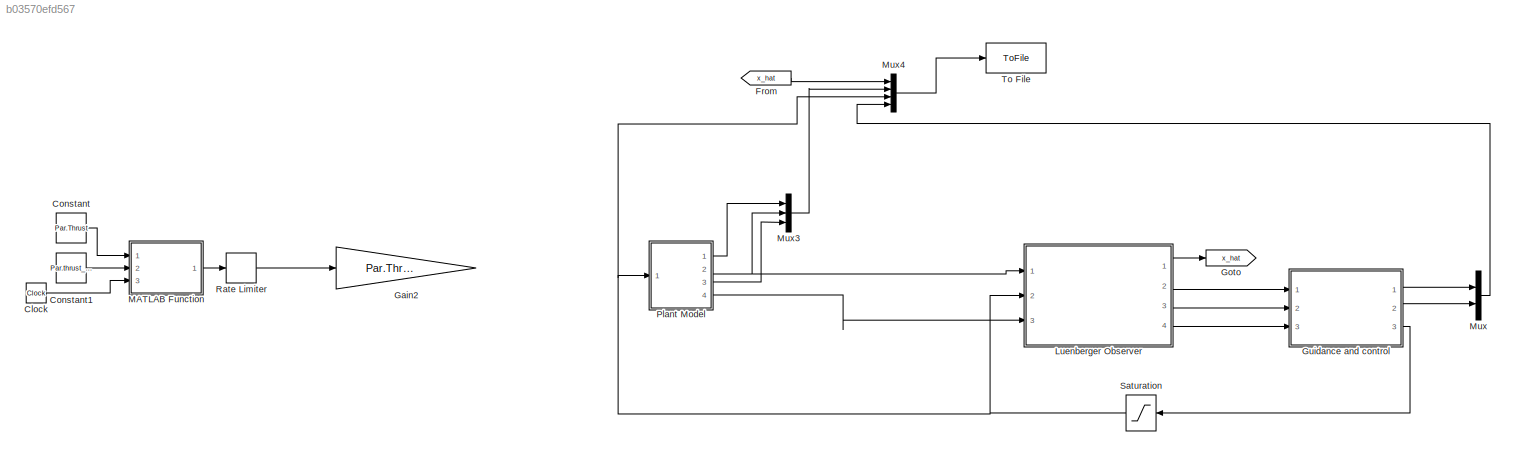
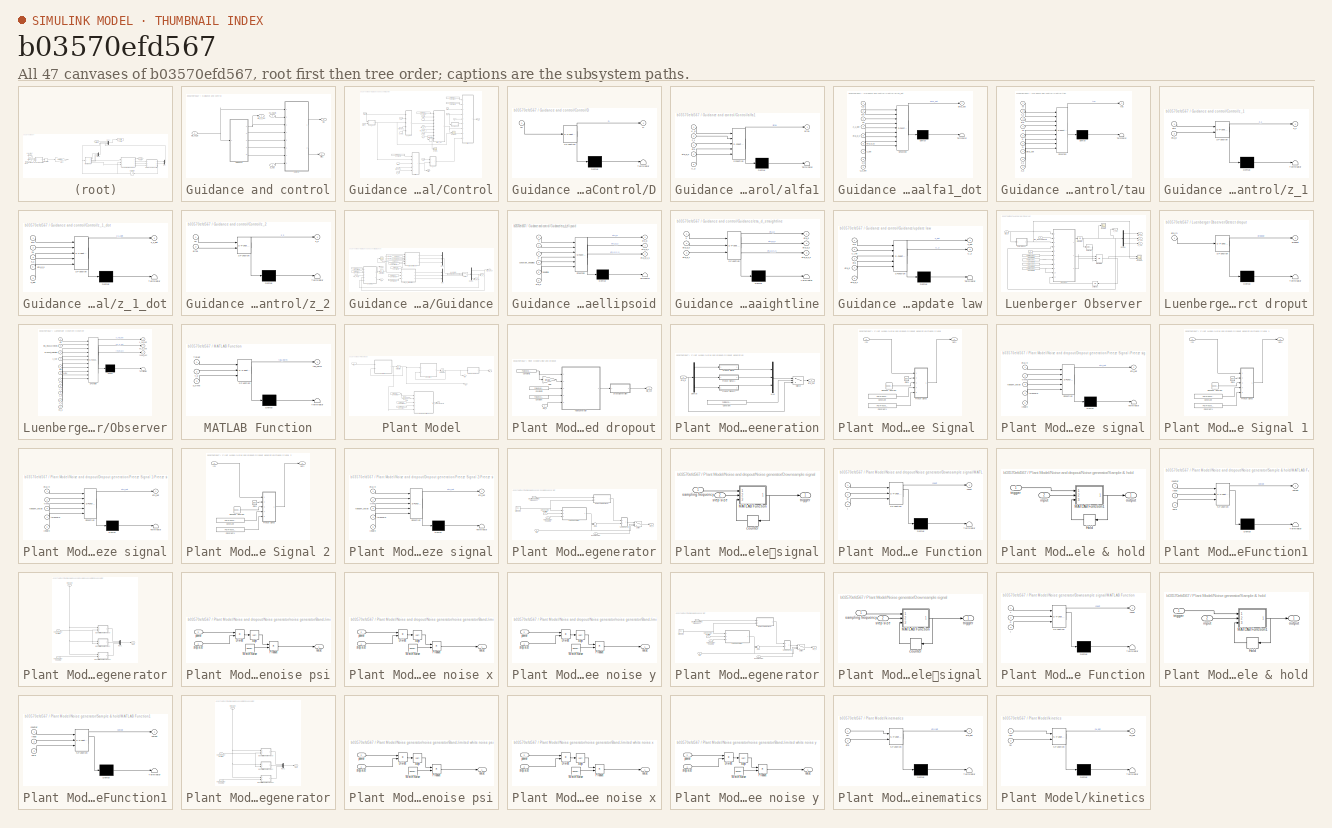
[diagram: thumbnail index - all 47 canvases of the model, root first then tree order]
MODEL slx_b03570efd567
KIND model
CONFIG AbsTol = auto
CONFIG EnableMultiTasking = off
CONFIG FixedStep = Par.Step_size
CONFIG MaxStep = auto
CONFIG MinStep = auto
CONFIG RelTol = 1e-3
CONFIG SampleTimeConstraint = Unconstrained
CONFIG Solver = VariableStepAuto
CONFIG SolverName = VariableStepAuto
CONFIG StartTime = 0.0
CONFIG StopTime = 40
BLOCK [Clock] Clock
  Commented = on
BLOCK [Constant] Constant
  Commented = on
  Value = Par.Thrust
  VectorParams1D = off
BLOCK [Constant] Constant1
  Commented = on
  Value = Par.thrust_time
BLOCK [From] From
  GotoTag = x_hat
BLOCK [Gain] Gain2
  Commented = on
  Gain = Par.Thrust_lim
  OutDataTypeStr = Inherit: Inherit via internal rule
  ParamDataTypeStr = Inherit: Inherit via internal rule
  SaturateOnIntegerOverflow = off
BLOCK [Goto] Goto
  GotoTag = x_hat
BLOCK [SubSystem] Guidance and control
  Ports = [3, 3]
  RequestExecContextInheritance = off
  Variant = off
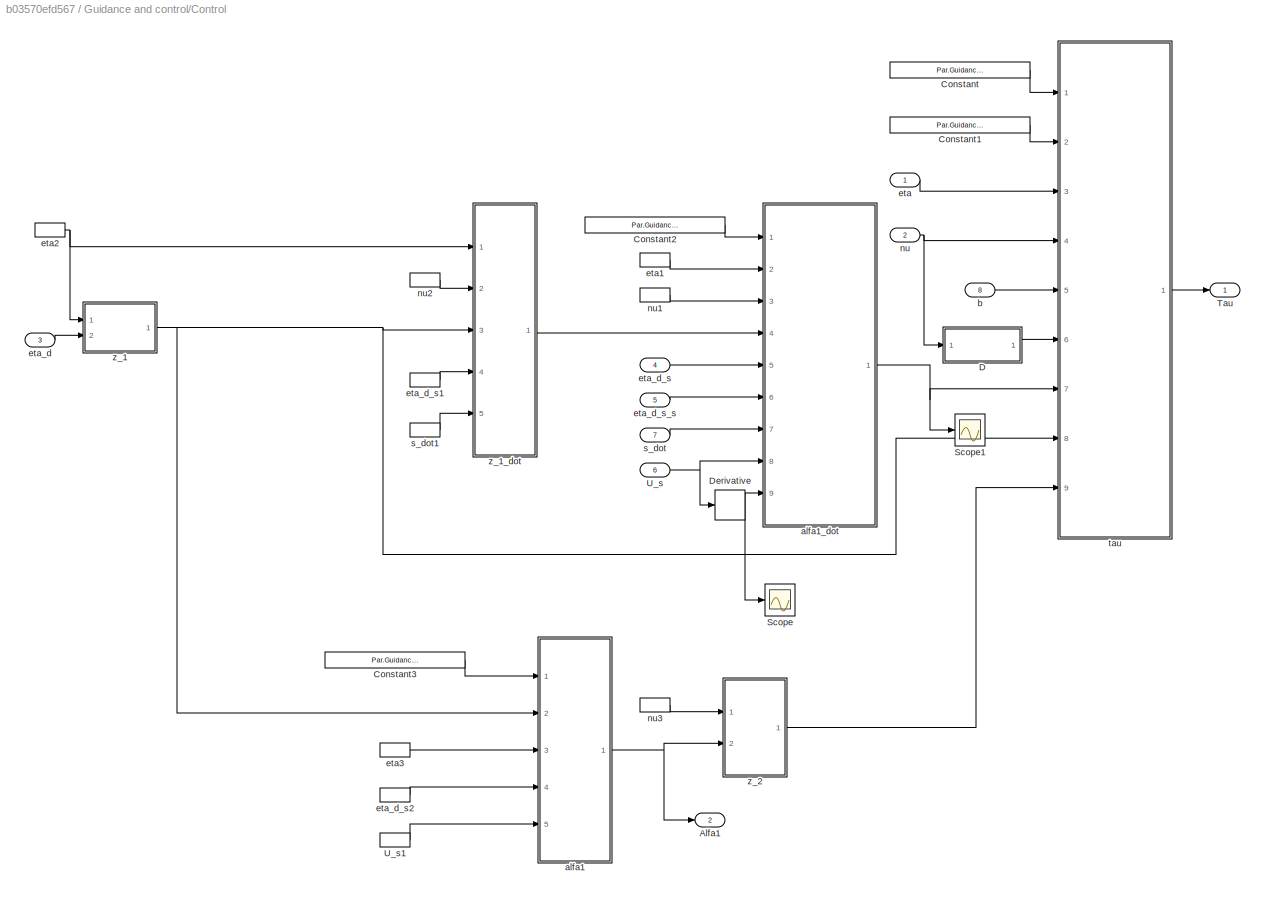
BLOCK [SubSystem] Guidance and control/Control
  Ports = [8, 2]
  RequestExecContextInheritance = off
  Variant = off
BLOCK [Outport] Guidance and control/Control/Alfa1
  IconDisplay = Port number
  Port = 2
BLOCK [Constant] Guidance and control/Control/Constant
  Value = Par.Guidance.M
BLOCK [Constant] Guidance and control/Control/Constant1
  Value = Par.Guidance.c_2
BLOCK [Constant] Guidance and control/Control/Constant2
  Value = Par.Guidance.K_p
BLOCK [Constant] Guidance and control/Control/Constant3
  Value = Par.Guidance.K_p
BLOCK [SubSystem] Guidance and control/Control/D
  ErrorFcn = Stateflow.Translate.translate
  PermitHierarchicalResolution = ExplicitOnly
  Ports = [1, 1]
  RequestExecContextInheritance = off
  SFBlockType = MATLAB Function
  TreatAsAtomicUnit = on
  Variant = off
BLOCK [Demux] Guidance and control/Control/D/ Demux 
  Outputs = 1
  Ports = [1, 1]
BLOCK [S-Function] Guidance and control/Control/D/ SFunction 
  EnableBusSupport = on
  FunctionName = sf_sfun
  PortCounts = [1 2]
  Ports = [1, 2]
  SFcnIsStateOwnerBlock = off
  SFunctionDeploymentMode = off
  Tag = Stateflow S-Function main_luenberger 22
BLOCK [Terminator] Guidance and control/Control/D/ Terminator 
BLOCK [Outport] Guidance and control/Control/D/D
  IconDisplay = Port number
BLOCK [Inport] Guidance and control/Control/D/nu
  IconDisplay = Port number
BLOCK [Derivative] Guidance and control/Control/Derivative
BLOCK [Scope] Guidance and control/Control/Scope
  NumInputPorts = 1
  Ports = [1]
  ScopeSpecificationString = Simulink.scopes.TimeScopeBlockCfg('CurrentConfiguration', extmgr.ConfigurationSet(extmgr.Configuration('Core','General UI',true),extmgr.Configuration('Core','Source UI',true),extmgr.Configuration('Sources','WiredSimulink',true,'DataLoggingVariableName','ScopeData1'),extmgr.Configuration('Visuals','Time Domain',true,'SerializedDisplays',{struct('MinYLimReal','-0.00215','MaxYLimReal','0.00215','YLab...<+1369ch>
BLOCK [Scope] Guidance and control/Control/Scope1
  NumInputPorts = 1
  Ports = [1]
  ScopeSpecificationString = Simulink.scopes.TimeScopeBlockCfg('CurrentConfiguration', extmgr.ConfigurationSet(extmgr.Configuration('Core','General UI',true),extmgr.Configuration('Core','Source UI',true),extmgr.Configuration('Sources','WiredSimulink',true),extmgr.Configuration('Visuals','Time Domain',true,'SerializedDisplays',{struct('MinYLimReal','-0.03644','MaxYLimReal','0.01857','YLabelReal','','MinYLimMag','0.00000','MaxY...<+1359ch>
BLOCK [Outport] Guidance and control/Control/Tau
  IconDisplay = Port number
BLOCK [Inport] Guidance and control/Control/U_s
  IconDisplay = Port number
  Port = 6
BLOCK [InportShadow] Guidance and control/Control/U_s1
  IconDisplay = Port number
  Port = 6
BLOCK [SubSystem] Guidance and control/Control/alfa1
  ErrorFcn = Stateflow.Translate.translate
  PermitHierarchicalResolution = ExplicitOnly
  Ports = [5, 1]
  RequestExecContextInheritance = off
  SFBlockType = MATLAB Function
  TreatAsAtomicUnit = on
  Variant = off
BLOCK [Demux] Guidance and control/Control/alfa1/ Demux 
  Outputs = 1
  Ports = [1, 1]
BLOCK [S-Function] Guidance and control/Control/alfa1/ SFunction 
  EnableBusSupport = on
  FunctionName = sf_sfun
  PortCounts = [5 2]
  Ports = [5, 2]
  SFcnIsStateOwnerBlock = off
  SFunctionDeploymentMode = off
  Tag = Stateflow S-Function main_luenberger 19
BLOCK [Terminator] Guidance and control/Control/alfa1/ Terminator 
BLOCK [Inport] Guidance and control/Control/alfa1/K_p
  IconDisplay = Port number
BLOCK [Inport] Guidance and control/Control/alfa1/U_s
  IconDisplay = Port number
  Port = 5
BLOCK [Outport] Guidance and control/Control/alfa1/alfa1
  IconDisplay = Port number
BLOCK [Inport] Guidance and control/Control/alfa1/eta
  IconDisplay = Port number
  Port = 3
BLOCK [Inport] Guidance and control/Control/alfa1/eta_d_s
  IconDisplay = Port number
  Port = 4
BLOCK [Inport] Guidance and control/Control/alfa1/z_1
  IconDisplay = Port number
  Port = 2
BLOCK [SubSystem] Guidance and control/Control/alfa1_dot
  ErrorFcn = Stateflow.Translate.translate
  PermitHierarchicalResolution = ExplicitOnly
  Ports = [9, 1]
  RequestExecContextInheritance = off
  SFBlockType = MATLAB Function
  TreatAsAtomicUnit = on
  Variant = off
BLOCK [Demux] Guidance and control/Control/alfa1_dot/ Demux 
  Outputs = 1
  Ports = [1, 1]
BLOCK [S-Function] Guidance and control/Control/alfa1_dot/ SFunction 
  EnableBusSupport = on
  FunctionName = sf_sfun
  PortCounts = [9 2]
  Ports = [9, 2]
  SFcnIsStateOwnerBlock = off
  SFunctionDeploymentMode = off
  Tag = Stateflow S-Function main_luenberger 20
BLOCK [Terminator] Guidance and control/Control/alfa1_dot/ Terminator 
BLOCK [Inport] Guidance and control/Control/alfa1_dot/K_p
  IconDisplay = Port number
BLOCK [Inport] Guidance and control/Control/alfa1_dot/U_s
  IconDisplay = Port number
  Port = 8
BLOCK [Inport] Guidance and control/Control/alfa1_dot/U_s_dot
  IconDisplay = Port number
  Port = 9
BLOCK [Outport] Guidance and control/Control/alfa1_dot/alfa1_dot
  IconDisplay = Port number
BLOCK [Inport] Guidance and control/Control/alfa1_dot/eta
  IconDisplay = Port number
  Port = 2
BLOCK [Inport] Guidance and control/Control/alfa1_dot/eta_d_s
  IconDisplay = Port number
  Port = 5
BLOCK [Inport] Guidance and control/Control/alfa1_dot/eta_d_s2
  IconDisplay = Port number
  Port = 6
BLOCK [Inport] Guidance and control/Control/alfa1_dot/nu
  IconDisplay = Port number
  Port = 3
BLOCK [Inport] Guidance and control/Control/alfa1_dot/s_dot
  IconDisplay = Port number
  Port = 7
BLOCK [Inport] Guidance and control/Control/alfa1_dot/z_1_dot
  IconDisplay = Port number
  Port = 4
BLOCK [Inport] Guidance and control/Control/b
  IconDisplay = Port number
  Port = 8
BLOCK [Inport] Guidance and control/Control/eta
  IconDisplay = Port number
BLOCK [InportShadow] Guidance and control/Control/eta1
  IconDisplay = Port number
BLOCK [InportShadow] Guidance and control/Control/eta2
  IconDisplay = Port number
BLOCK [InportShadow] Guidance and control/Control/eta3
  IconDisplay = Port number
BLOCK [Inport] Guidance and control/Control/eta_d
  IconDisplay = Port number
  Port = 3
BLOCK [Inport] Guidance and control/Control/eta_d_s
  IconDisplay = Port number
  Port = 4
BLOCK [InportShadow] Guidance and control/Control/eta_d_s1
  IconDisplay = Port number
  Port = 4
BLOCK [InportShadow] Guidance and control/Control/eta_d_s2
  IconDisplay = Port number
  Port = 4
BLOCK [Inport] Guidance and control/Control/eta_d_s_s 
  IconDisplay = Port number
  Port = 5
BLOCK [Inport] Guidance and control/Control/nu
  IconDisplay = Port number
  Port = 2
BLOCK [InportShadow] Guidance and control/Control/nu1
  IconDisplay = Port number
  Port = 2
BLOCK [InportShadow] Guidance and control/Control/nu2
  IconDisplay = Port number
  Port = 2
BLOCK [InportShadow] Guidance and control/Control/nu3
  IconDisplay = Port number
  Port = 2
BLOCK [Inport] Guidance and control/Control/s_dot
  IconDisplay = Port number
  Port = 7
BLOCK [InportShadow] Guidance and control/Control/s_dot1
  IconDisplay = Port number
  Port = 7
BLOCK [SubSystem] Guidance and control/Control/tau
  ErrorFcn = Stateflow.Translate.translate
  PermitHierarchicalResolution = ExplicitOnly
  Ports = [9, 1]
  RequestExecContextInheritance = off
  SFBlockType = MATLAB Function
  TreatAsAtomicUnit = on
  Variant = off
BLOCK [Demux] Guidance and control/Control/tau/ Demux 
  Outputs = 1
  Ports = [1, 1]
BLOCK [S-Function] Guidance and control/Control/tau/ SFunction 
  EnableBusSupport = on
  FunctionName = sf_sfun
  PortCounts = [9 2]
  Ports = [9, 2]
  SFcnIsStateOwnerBlock = off
  SFunctionDeploymentMode = off
  Tag = Stateflow S-Function main_luenberger 21
BLOCK [Terminator] Guidance and control/Control/tau/ Terminator 
BLOCK [Inport] Guidance and control/Control/tau/D
  IconDisplay = Port number
  Port = 6
BLOCK [Inport] Guidance and control/Control/tau/M
  IconDisplay = Port number
BLOCK [Inport] Guidance and control/Control/tau/alfa1_dot
  IconDisplay = Port number
  Port = 7
BLOCK [Inport] Guidance and control/Control/tau/b
  IconDisplay = Port number
  Port = 5
BLOCK [Inport] Guidance and control/Control/tau/c_2
  IconDisplay = Port number
  Port = 2
BLOCK [Inport] Guidance and control/Control/tau/eta
  IconDisplay = Port number
  Port = 3
BLOCK [Inport] Guidance and control/Control/tau/nu
  IconDisplay = Port number
  Port = 4
BLOCK [Outport] Guidance and control/Control/tau/tau
  IconDisplay = Port number
BLOCK [Inport] Guidance and control/Control/tau/z_1
  IconDisplay = Port number
  Port = 8
BLOCK [Inport] Guidance and control/Control/tau/z_2
  IconDisplay = Port number
  Port = 9
BLOCK [SubSystem] Guidance and control/Control/z_1
  ErrorFcn = Stateflow.Translate.translate
  PermitHierarchicalResolution = ExplicitOnly
  Ports = [2, 1]
  RequestExecContextInheritance = off
  SFBlockType = MATLAB Function
  TreatAsAtomicUnit = on
  Variant = off
BLOCK [Demux] Guidance and control/Control/z_1/ Demux 
  Outputs = 1
  Ports = [1, 1]
BLOCK [S-Function] Guidance and control/Control/z_1/ SFunction 
  EnableBusSupport = on
  FunctionName = sf_sfun
  PortCounts = [2 2]
  Ports = [2, 2]
  SFcnIsStateOwnerBlock = off
  SFunctionDeploymentMode = off
  Tag = Stateflow S-Function main_luenberger 3
BLOCK [Terminator] Guidance and control/Control/z_1/ Terminator 
BLOCK [Inport] Guidance and control/Control/z_1/eta
  IconDisplay = Port number
BLOCK [Inport] Guidance and control/Control/z_1/eta_d
  IconDisplay = Port number
  Port = 2
BLOCK [Outport] Guidance and control/Control/z_1/z_1
  IconDisplay = Port number
BLOCK [SubSystem] Guidance and control/Control/z_1_dot
  ErrorFcn = Stateflow.Translate.translate
  PermitHierarchicalResolution = ExplicitOnly
  Ports = [5, 1]
  RequestExecContextInheritance = off
  SFBlockType = MATLAB Function
  TreatAsAtomicUnit = on
  Variant = off
BLOCK [Demux] Guidance and control/Control/z_1_dot/ Demux 
  Outputs = 1
  Ports = [1, 1]
BLOCK [S-Function] Guidance and control/Control/z_1_dot/ SFunction 
  EnableBusSupport = on
  FunctionName = sf_sfun
  PortCounts = [5 2]
  Ports = [5, 2]
  SFcnIsStateOwnerBlock = off
  SFunctionDeploymentMode = off
  Tag = Stateflow S-Function main_luenberger 17
BLOCK [Terminator] Guidance and control/Control/z_1_dot/ Terminator 
BLOCK [Inport] Guidance and control/Control/z_1_dot/eta
  IconDisplay = Port number
BLOCK [Inport] Guidance and control/Control/z_1_dot/eta_d_s
  IconDisplay = Port number
  Port = 4
BLOCK [Inport] Guidance and control/Control/z_1_dot/nu
  IconDisplay = Port number
  Port = 2
BLOCK [Inport] Guidance and control/Control/z_1_dot/s_dot
  IconDisplay = Port number
  Port = 5
BLOCK [Inport] Guidance and control/Control/z_1_dot/z_1
  IconDisplay = Port number
  Port = 3
BLOCK [Outport] Guidance and control/Control/z_1_dot/z_1_dot
  IconDisplay = Port number
BLOCK [SubSystem] Guidance and control/Control/z_2
  ErrorFcn = Stateflow.Translate.translate
  PermitHierarchicalResolution = ExplicitOnly
  Ports = [2, 1]
  RequestExecContextInheritance = off
  SFBlockType = MATLAB Function
  TreatAsAtomicUnit = on
  Variant = off
BLOCK [Demux] Guidance and control/Control/z_2/ Demux 
  Outputs = 1
  Ports = [1, 1]
BLOCK [S-Function] Guidance and control/Control/z_2/ SFunction 
  EnableBusSupport = on
  FunctionName = sf_sfun
  PortCounts = [2 2]
  Ports = [2, 2]
  SFcnIsStateOwnerBlock = off
  SFunctionDeploymentMode = off
  Tag = Stateflow S-Function main_luenberger 18
BLOCK [Terminator] Guidance and control/Control/z_2/ Terminator 
BLOCK [Inport] Guidance and control/Control/z_2/alfa1
  IconDisplay = Port number
  Port = 2
BLOCK [Inport] Guidance and control/Control/z_2/nu
  IconDisplay = Port number
BLOCK [Outport] Guidance and control/Control/z_2/z_2
  IconDisplay = Port number
BLOCK [SubSystem] Guidance and control/Guidance
  Ports = [1, 5]
  RequestExecContextInheritance = off
  Variant = off
BLOCK [Constant] Guidance and control/Guidance/Constant
  Value = Par.Guidance.U_ref
BLOCK [Constant] Guidance and control/Guidance/Constant1
  Value = Par.Guidance.mu
BLOCK [Constant] Guidance and control/Guidance/Constant2
  Value = Par.Guidance.eta_d_0
BLOCK [Constant] Guidance and control/Guidance/Constant3
  Value = Par.Guidance.eta_d_1
BLOCK [Constant] Guidance and control/Guidance/Constant4
  Value = Par.Guidance.Ellipsoid
BLOCK [Constant] Guidance and control/Guidance/Constant5
  Value = Par.Guidance.c
BLOCK [Constant] Guidance and control/Guidance/Constant6
  Value = Par.Guidance.r
BLOCK [Constant] Guidance and control/Guidance/Constant7
  Value = Par.Guidance.constant_heading
BLOCK [Constant] Guidance and control/Guidance/Constant8
  Value = Par.Guidance.heading
BLOCK [Constant] Guidance and control/Guidance/Constant9
  Value = Par.Model.Eta_0
BLOCK [Demux] Guidance and control/Guidance/Demux
  DisplayOption = bar
  Outputs = 3
  Ports = [1, 3]
BLOCK [Integrator] Guidance and control/Guidance/Integrator1
  InitialCondition = Par.Guidance.s_0
  Ports = [1, 1]
BLOCK [Mux] Guidance and control/Guidance/Mux
  DisplayOption = bar
  Inputs = 3
  Ports = [3, 1]
BLOCK [Mux] Guidance and control/Guidance/Mux1
  DisplayOption = bar
  Inputs = 3
  Ports = [3, 1]
BLOCK [Switch] Guidance and control/Guidance/Switch
  Criteria = u2 ~= 0
  InputSameDT = off
  SaturateOnIntegerOverflow = off
BLOCK [Outport] Guidance and control/Guidance/U_s
  IconDisplay = Port number
  Port = 4
BLOCK [SubSystem] Guidance and control/Guidance/eta_d_ellipsoid
  ErrorFcn = Stateflow.Translate.translate
  PermitHierarchicalResolution = ExplicitOnly
  Ports = [6, 3]
  RequestExecContextInheritance = off
  SFBlockType = MATLAB Function
  TreatAsAtomicUnit = on
  Variant = off
BLOCK [Demux] Guidance and control/Guidance/eta_d_ellipsoid/ Demux 
  Outputs = 1
  Ports = [1, 1]
BLOCK [S-Function] Guidance and control/Guidance/eta_d_ellipsoid/ SFunction 
  EnableBusSupport = on
  FunctionName = sf_sfun
  PortCounts = [6 4]
  Ports = [6, 4]
  SFcnIsStateOwnerBlock = off
  SFunctionDeploymentMode = off
  Tag = Stateflow S-Function main_luenberger 7
BLOCK [Terminator] Guidance and control/Guidance/eta_d_ellipsoid/ Terminator 
BLOCK [Inport] Guidance and control/Guidance/eta_d_ellipsoid/c
  IconDisplay = Port number
  Port = 3
BLOCK [Inport] Guidance and control/Guidance/eta_d_ellipsoid/constant_heading
  IconDisplay = Port number
  Port = 4
BLOCK [Inport] Guidance and control/Guidance/eta_d_ellipsoid/eta_0
  IconDisplay = Port number
  Port = 6
BLOCK [Outport] Guidance and control/Guidance/eta_d_ellipsoid/eta_d
  IconDisplay = Port number
BLOCK [Outport] Guidance and control/Guidance/eta_d_ellipsoid/eta_d_s
  IconDisplay = Port number
  Port = 2
BLOCK [Outport] Guidance and control/Guidance/eta_d_ellipsoid/eta_d_s_s
  IconDisplay = Port number
  Port = 3
BLOCK [Inport] Guidance and control/Guidance/eta_d_ellipsoid/heading
  IconDisplay = Port number
  Port = 5
BLOCK [Inport] Guidance and control/Guidance/eta_d_ellipsoid/r
  IconDisplay = Port number
  Port = 2
BLOCK [Inport] Guidance and control/Guidance/eta_d_ellipsoid/s
  IconDisplay = Port number
BLOCK [Outport] Guidance and control/Guidance/eta_d_out
  IconDisplay = Port number
BLOCK [Outport] Guidance and control/Guidance/eta_d_s
  IconDisplay = Port number
  Port = 2
BLOCK [Outport] Guidance and control/Guidance/eta_d_s2
  IconDisplay = Port number
  Port = 3
BLOCK [SubSystem] Guidance and control/Guidance/eta_d_straightline
  ErrorFcn = Stateflow.Translate.translate
  PermitHierarchicalResolution = ExplicitOnly
  Ports = [3, 3]
  RequestExecContextInheritance = off
  SFBlockType = MATLAB Function
  TreatAsAtomicUnit = on
  Variant = off
BLOCK [Demux] Guidance and control/Guidance/eta_d_straightline/ Demux 
  Outputs = 1
  Ports = [1, 1]
BLOCK [S-Function] Guidance and control/Guidance/eta_d_straightline/ SFunction 
  EnableBusSupport = on
  FunctionName = sf_sfun
  PortCounts = [3 4]
  Ports = [3, 4]
  SFcnIsStateOwnerBlock = off
  SFunctionDeploymentMode = off
  Tag = Stateflow S-Function main_luenberger 4
BLOCK [Terminator] Guidance and control/Guidance/eta_d_straightline/ Terminator 
BLOCK [Outport] Guidance and control/Guidance/eta_d_straightline/eta_d
  IconDisplay = Port number
BLOCK [Inport] Guidance and control/Guidance/eta_d_straightline/eta_d_0
  IconDisplay = Port number
  Port = 2
BLOCK [Inport] Guidance and control/Guidance/eta_d_straightline/eta_d_1
  IconDisplay = Port number
  Port = 3
BLOCK [Outport] Guidance and control/Guidance/eta_d_straightline/eta_d_s
  IconDisplay = Port number
  Port = 2
BLOCK [Outport] Guidance and control/Guidance/eta_d_straightline/eta_d_s_s
  IconDisplay = Port number
  Port = 3
BLOCK [Inport] Guidance and control/Guidance/eta_d_straightline/s
  IconDisplay = Port number
BLOCK [Inport] Guidance and control/Guidance/eta_hat_in 
  IconDisplay = Port number
BLOCK [Scope] Guidance and control/Guidance/s
  NumInputPorts = 1
  Ports = [1]
  ScopeSpecificationString = Simulink.scopes.TimeScopeBlockCfg('CurrentConfiguration', extmgr.ConfigurationSet(extmgr.Configuration('Core','General UI',true),extmgr.Configuration('Core','Source UI',true),extmgr.Configuration('Sources','WiredSimulink',true,'DataLoggingVariableName','ScopeData3'),extmgr.Configuration('Visuals','Time Domain',true,'SerializedDisplays',{struct('MinYLimReal','-0.17065','MaxYLimReal','1.53587','YLab...<+1397ch>
BLOCK [Outport] Guidance and control/Guidance/s_dot
  IconDisplay = Port number
  Port = 5
BLOCK [SubSystem] Guidance and control/Guidance/update law
  ErrorFcn = Stateflow.Translate.translate
  PermitHierarchicalResolution = ExplicitOnly
  Ports = [5, 2]
  RequestExecContextInheritance = off
  SFBlockType = MATLAB Function
  TreatAsAtomicUnit = on
  Variant = off
BLOCK [Demux] Guidance and control/Guidance/update law/ Demux 
  Outputs = 1
  Ports = [1, 1]
BLOCK [S-Function] Guidance and control/Guidance/update law/ SFunction 
  EnableBusSupport = on
  FunctionName = sf_sfun
  PortCounts = [5 3]
  Ports = [5, 3]
  SFcnIsStateOwnerBlock = off
  SFunctionDeploymentMode = off
  Tag = Stateflow S-Function main_luenberger 6
BLOCK [Terminator] Guidance and control/Guidance/update law/ Terminator 
BLOCK [Inport] Guidance and control/Guidance/update law/U_ref
  IconDisplay = Port number
  Port = 2
BLOCK [Outport] Guidance and control/Guidance/update law/U_s
  IconDisplay = Port number
  Port = 2
BLOCK [Inport] Guidance and control/Guidance/update law/eta
  IconDisplay = Port number
  Port = 3
BLOCK [Inport] Guidance and control/Guidance/update law/eta_d
  IconDisplay = Port number
  Port = 4
BLOCK [Inport] Guidance and control/Guidance/update law/eta_d_s
  IconDisplay = Port number
  Port = 5
BLOCK [Inport] Guidance and control/Guidance/update law/mu
  IconDisplay = Port number
BLOCK [Outport] Guidance and control/Guidance/update law/s_dot
  IconDisplay = Port number
BLOCK [Outport] Guidance and control/alfa1
  IconDisplay = Port number
  Port = 2
BLOCK [Inport] Guidance and control/b_hat
  IconDisplay = Port number
  Port = 3
BLOCK [Outport] Guidance and control/eta_d_out
  IconDisplay = Port number
BLOCK [Inport] Guidance and control/eta_hat_in 
  IconDisplay = Port number
BLOCK [Inport] Guidance and control/nu_hat_in
  IconDisplay = Port number
  Port = 2
BLOCK [Outport] Guidance and control/tau
  IconDisplay = Port number
  Port = 3
BLOCK [SubSystem] Luenberger Observer
  Ports = [3, 4]
  RequestExecContextInheritance = off
  Variant = off
BLOCK [Constant] Luenberger Observer/Constant2
  Value = Par.Observer.M_inv
BLOCK [Constant] Luenberger Observer/Constant3
  Value = Par.Observer.L_1
BLOCK [Constant] Luenberger Observer/Constant4
  Value = Par.Observer.L_2
BLOCK [Constant] Luenberger Observer/Constant5
  Value = Par.Observer.L_3
BLOCK [Demux] Luenberger Observer/Demux
  DisplayOption = bar
  Outputs = 3
  Ports = [1, 3]
BLOCK [SubSystem] Luenberger Observer/Detect droput
  ErrorFcn = Stateflow.Translate.translate
  PermitHierarchicalResolution = ExplicitOnly
  Ports = [1, 1]
  RequestExecContextInheritance = off
  SFBlockType = MATLAB Function
  TreatAsAtomicUnit = on
  Variant = off
BLOCK [Demux] Luenberger Observer/Detect droput/ Demux 
  Outputs = 1
  Ports = [1, 1]
BLOCK [S-Function] Luenberger Observer/Detect droput/ SFunction 
  EnableBusSupport = on
  FunctionName = sf_sfun
  PortCounts = [1 2]
  Ports = [1, 2]
  SFcnIsStateOwnerBlock = off
  SFunctionDeploymentMode = off
  Tag = Stateflow S-Function main_luenberger 10
BLOCK [Terminator] Luenberger Observer/Detect droput/ Terminator 
BLOCK [Outport] Luenberger Observer/Detect droput/dropout
  IconDisplay = Port number
BLOCK [Inport] Luenberger Observer/Detect droput/eta_in
  IconDisplay = Port number
BLOCK [Outport] Luenberger Observer/Eta_hat
  IconDisplay = Port number
  Port = 2
  PortDimensions = [3, 1]
BLOCK [Inport] Luenberger Observer/Eta_in
  IconDisplay = Port number
BLOCK [Integrator] Luenberger Observer/Integrator
  InitialCondition = Par.Observer.x_0
  Ports = [1, 1]
BLOCK [Integrator] Luenberger Observer/Integrator1
  ExternalReset = rising
  InitialCondition = Par.Observer.x_0
  InitialConditionSource = external
  Ports = [3, 1]
BLOCK [Outport] Luenberger Observer/Nu_hat
  IconDisplay = Port number
  Port = 3
  PortDimensions = [3, 1]
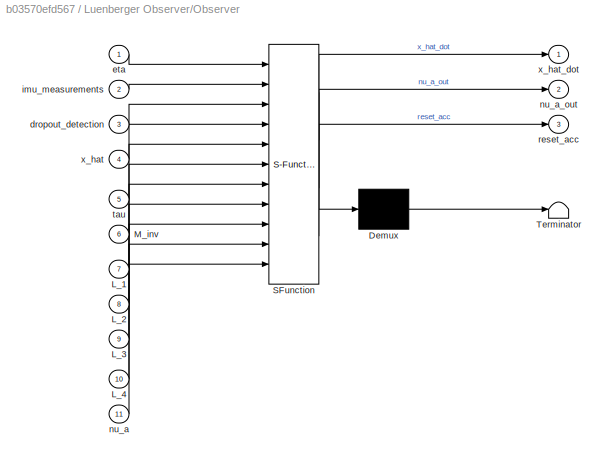
BLOCK [SubSystem] Luenberger Observer/Observer
  ErrorFcn = Stateflow.Translate.translate
  PermitHierarchicalResolution = ExplicitOnly
  Ports = [11, 3]
  RequestExecContextInheritance = off
  SFBlockType = MATLAB Function
  TreatAsAtomicUnit = on
  Variant = off
BLOCK [Demux] Luenberger Observer/Observer/ Demux 
  Outputs = 1
  Ports = [1, 1]
BLOCK [S-Function] Luenberger Observer/Observer/ SFunction 
  EnableBusSupport = on
  FunctionName = sf_sfun
  PortCounts = [11 4]
  Ports = [11, 4]
  SFcnIsStateOwnerBlock = off
  SFunctionDeploymentMode = off
  Tag = Stateflow S-Function main_luenberger 16
BLOCK [Terminator] Luenberger Observer/Observer/ Terminator 
BLOCK [Inport] Luenberger Observer/Observer/L_1
  IconDisplay = Port number
  Port = 7
BLOCK [Inport] Luenberger Observer/Observer/L_2
  IconDisplay = Port number
  Port = 8
BLOCK [Inport] Luenberger Observer/Observer/L_3
  IconDisplay = Port number
  Port = 9
BLOCK [Inport] Luenberger Observer/Observer/L_4
  IconDisplay = Port number
  Port = 10
BLOCK [Inport] Luenberger Observer/Observer/M_inv
  IconDisplay = Port number
  Port = 6
BLOCK [Inport] Luenberger Observer/Observer/dropout_detection
  IconDisplay = Port number
  Port = 3
BLOCK [Inport] Luenberger Observer/Observer/eta
  IconDisplay = Port number
BLOCK [Inport] Luenberger Observer/Observer/imu_measurements
  IconDisplay = Port number
  Port = 2
BLOCK [Inport] Luenberger Observer/Observer/nu_a
  IconDisplay = Port number
  Port = 11
BLOCK [Outport] Luenberger Observer/Observer/nu_a_out
  IconDisplay = Port number
  Port = 2
BLOCK [Outport] Luenberger Observer/Observer/reset_acc
  IconDisplay = Port number
  Port = 3
BLOCK [Inport] Luenberger Observer/Observer/tau
  IconDisplay = Port number
  Port = 5
BLOCK [Inport] Luenberger Observer/Observer/x_hat
  IconDisplay = Port number
  Port = 4
BLOCK [Outport] Luenberger Observer/Observer/x_hat_dot
  IconDisplay = Port number
BLOCK [Scope] Luenberger Observer/Scope
  NumInputPorts = 1
  Ports = [1]
  ScopeSpecificationString = Simulink.scopes.TimeScopeBlockCfg('CurrentConfiguration', extmgr.ConfigurationSet(extmgr.Configuration('Core','General UI',true),extmgr.Configuration('Core','Source UI',true),extmgr.Configuration('Sources','WiredSimulink',true,'DataLoggingVariableName','ScopeData1'),extmgr.Configuration('Visuals','Time Domain',true,'SerializedDisplays',{struct('MinYLimReal','-4442631.30929','MaxYLimReal','39982167...<+1541ch>
BLOCK [Scope] Luenberger Observer/Scope2
  NumInputPorts = 2
  Ports = [2]
  ScopeSpecificationString = Simulink.scopes.TimeScopeBlockCfg('CurrentConfiguration', extmgr.ConfigurationSet(extmgr.Configuration('Core','General UI',true),extmgr.Configuration('Core','Source UI',true),extmgr.Configuration('Sources','WiredSimulink',true,'DataLoggingVariableName','ScopeData2'),extmgr.Configuration('Visuals','Time Domain',true,'SerializedDisplays',{struct('MinYLimReal','-0.57091','MaxYLimReal','0.52397','YLab...<+2038ch>
BLOCK [Selector] Luenberger Observer/Selector
  IndexOptions = Index vector (dialog)
  Indices = [4 5 6]
  InputPortWidth = 9
  OutputSizes = 1
  Ports = [1, 1]
BLOCK [Inport] Luenberger Observer/Tau_in
  IconDisplay = Port number
  Port = 2
BLOCK [UnitDelay] Luenberger Observer/Unit Delay
  InitialCondition = [0 0 0]
  InputProcessing = Elements as channels (sample based)
  SampleTime = -1
BLOCK [Outport] Luenberger Observer/b_hat
  IconDisplay = Port number
  Port = 4
  PortDimensions = [3, 1]
BLOCK [Inport] Luenberger Observer/imu_measurements
  IconDisplay = Port number
  Port = 3
BLOCK [Outport] Luenberger Observer/x_hat 
  IconDisplay = Port number
BLOCK [SubSystem] MATLAB Function
  Commented = on
  ErrorFcn = Stateflow.Translate.translate
  PermitHierarchicalResolution = ExplicitOnly
  Ports = [3, 1]
  RequestExecContextInheritance = off
  SFBlockType = MATLAB Function
  TreatAsAtomicUnit = on
  Variant = off
BLOCK [Demux] MATLAB Function/ Demux 
  Outputs = 1
  Ports = [1, 1]
BLOCK [S-Function] MATLAB Function/ SFunction 
  EnableBusSupport = on
  FunctionName = sf_sfun
  PortCounts = [3 2]
  Ports = [3, 2]
  SFcnIsStateOwnerBlock = off
  SFunctionDeploymentMode = off
  Tag = Stateflow S-Function main_luenberger 5
BLOCK [Terminator] MATLAB Function/ Terminator 
BLOCK [Inport] MATLAB Function/Thrust
  IconDisplay = Port number
BLOCK [Inport] MATLAB Function/s_time
  IconDisplay = Port number
  Port = 3
BLOCK [Inport] MATLAB Function/t_0
  IconDisplay = Port number
  Port = 2
BLOCK [Outport] MATLAB Function/tau_norm
  IconDisplay = Port number
BLOCK [Mux] Mux
  DisplayOption = bar
  Inputs = 2
  Ports = [2, 1]
BLOCK [Mux] Mux3
  DisplayOption = bar
  Inputs = 3
  Ports = [3, 1]
BLOCK [Mux] Mux4
  DisplayOption = bar
  Ports = [4, 1]
BLOCK [SubSystem] Plant Model
  Ports = [1, 4]
  RequestExecContextInheritance = off
  Variant = off
BLOCK [Constant] Plant Model/Constant
  Value = Par.Noise.Sample_freq
BLOCK [Constant] Plant Model/Constant1
  Value = Par.Noise.power_imu
BLOCK [Constant] Plant Model/Constant2
  Value = Par.Noise.Enable
BLOCK [Gain] Plant Model/Gain
  Gain = pi/180
  OutDataTypeStr = Inherit: Inherit via internal rule
  ParamDataTypeStr = Inherit: Inherit via internal rule
  SaturateOnIntegerOverflow = off
BLOCK [Integrator] Plant Model/Integrator
  InitialCondition = [0 0 0]
  Ports = [1, 1]
BLOCK [Integrator] Plant Model/Integrator1
  InitialCondition = Par.Model.Eta_0
  Ports = [1, 1]
BLOCK [SubSystem] Plant Model/Noise and dropout
  Ports = [1, 1]
  RequestExecContextInheritance = off
  Variant = off
BLOCK [Constant] Plant Model/Noise and dropout/Constant
  Value = Par.Noise.Sample_freq
BLOCK [Constant] Plant Model/Noise and dropout/Constant1
  Value = Par.Noise.power
BLOCK [Constant] Plant Model/Noise and dropout/Constant2
  Value = Par.Noise.Enable
BLOCK [SubSystem] Plant Model/Noise and dropout/Dropout generation
  Ports = [1, 1]
  RequestExecContextInheritance = off
  Variant = off
BLOCK [Constant] Plant Model/Noise and dropout/Dropout generation/Constant
  Value = Par.Freeze.Enable
BLOCK [Demux] Plant Model/Noise and dropout/Dropout generation/Demux
  DisplayOption = bar
  Outputs = 3
  Ports = [1, 3]
BLOCK [Inport] Plant Model/Noise and dropout/Dropout generation/Eta_in
  IconDisplay = Port number
BLOCK [Outport] Plant Model/Noise and dropout/Dropout generation/Eta_out
  IconDisplay = Port number
BLOCK [SubSystem] Plant Model/Noise and dropout/Dropout generation/Freeze Signal 
  Ports = [1, 1]
  RequestExecContextInheritance = off
  Variant = off
BLOCK [Clock] Plant Model/Noise and dropout/Dropout generation/Freeze Signal /Clock
BLOCK [Constant] Plant Model/Noise and dropout/Dropout generation/Freeze Signal /Constant
  Value = Par.Freeze.threshold
BLOCK [Constant] Plant Model/Noise and dropout/Dropout generation/Freeze Signal /Constant1
  Value = Par.Freeze.length
BLOCK [SubSystem] Plant Model/Noise and dropout/Dropout generation/Freeze Signal /Freeze signal
  ErrorFcn = Stateflow.Translate.translate
  PermitHierarchicalResolution = ExplicitOnly
  Ports = [5, 1]
  RequestExecContextInheritance = off
  SFBlockType = MATLAB Function
  TreatAsAtomicUnit = on
  Variant = off
BLOCK [Demux] Plant Model/Noise and dropout/Dropout generation/Freeze Signal /Freeze signal/ Demux 
  Outputs = 1
  Ports = [1, 1]
BLOCK [S-Function] Plant Model/Noise and dropout/Dropout generation/Freeze Signal /Freeze signal/ SFunction 
  EnableBusSupport = on
  FunctionName = sf_sfun
  PortCounts = [5 2]
  Ports = [5, 2]
  SFcnIsStateOwnerBlock = off
  SFunctionDeploymentMode = off
  Tag = Stateflow S-Function main_luenberger 11
BLOCK [Terminator] Plant Model/Noise and dropout/Dropout generation/Freeze Signal /Freeze signal/ Terminator 
BLOCK [Inport] Plant Model/Noise and dropout/Dropout generation/Freeze Signal /Freeze signal/eta_in
  IconDisplay = Port number
BLOCK [Outport] Plant Model/Noise and dropout/Dropout generation/Freeze Signal /Freeze signal/eta_out
  IconDisplay = Port number
BLOCK [Inport] Plant Model/Noise and dropout/Dropout generation/Freeze Signal /Freeze signal/length
  IconDisplay = Port number
  Port = 5
BLOCK [Inport] Plant Model/Noise and dropout/Dropout generation/Freeze Signal /Freeze signal/random_value
  IconDisplay = Port number
  Port = 3
BLOCK [Inport] Plant Model/Noise and dropout/Dropout generation/Freeze Signal /Freeze signal/threshold
  IconDisplay = Port number
  Port = 4
BLOCK [Inport] Plant Model/Noise and dropout/Dropout generation/Freeze Signal /Freeze signal/time
  IconDisplay = Port number
  Port = 2
BLOCK [Inport] Plant Model/Noise and dropout/Dropout generation/Freeze Signal /In1
  IconDisplay = Port number
BLOCK [Outport] Plant Model/Noise and dropout/Dropout generation/Freeze Signal /Out1
  IconDisplay = Port number
BLOCK [RandomNumber] Plant Model/Noise and dropout/Dropout generation/Freeze Signal /Random Number
  SampleTime = Par.Sample_time
  Seed = ceil(abs(5*round(abs(now*1e6 - fix(now*1e6))*1e5)))
BLOCK [SubSystem] Plant Model/Noise and dropout/Dropout generation/Freeze Signal 1
  Ports = [1, 1]
  RequestExecContextInheritance = off
  Variant = off
BLOCK [Clock] Plant Model/Noise and dropout/Dropout generation/Freeze Signal 1/Clock
BLOCK [Constant] Plant Model/Noise and dropout/Dropout generation/Freeze Signal 1/Constant
  Value = Par.Freeze.threshold
BLOCK [Constant] Plant Model/Noise and dropout/Dropout generation/Freeze Signal 1/Constant1
  Value = Par.Freeze.length
BLOCK [SubSystem] Plant Model/Noise and dropout/Dropout generation/Freeze Signal 1/Freeze signal
  ErrorFcn = Stateflow.Translate.translate
  PermitHierarchicalResolution = ExplicitOnly
  Ports = [5, 1]
  RequestExecContextInheritance = off
  SFBlockType = MATLAB Function
  TreatAsAtomicUnit = on
  Variant = off
BLOCK [Demux] Plant Model/Noise and dropout/Dropout generation/Freeze Signal 1/Freeze signal/ Demux 
  Outputs = 1
  Ports = [1, 1]
BLOCK [S-Function] Plant Model/Noise and dropout/Dropout generation/Freeze Signal 1/Freeze signal/ SFunction 
  EnableBusSupport = on
  FunctionName = sf_sfun
  PortCounts = [5 2]
  Ports = [5, 2]
  SFcnIsStateOwnerBlock = off
  SFunctionDeploymentMode = off
  Tag = Stateflow S-Function main_luenberger 12
BLOCK [Terminator] Plant Model/Noise and dropout/Dropout generation/Freeze Signal 1/Freeze signal/ Terminator 
BLOCK [Inport] Plant Model/Noise and dropout/Dropout generation/Freeze Signal 1/Freeze signal/eta_in
  IconDisplay = Port number
BLOCK [Outport] Plant Model/Noise and dropout/Dropout generation/Freeze Signal 1/Freeze signal/eta_out
  IconDisplay = Port number
BLOCK [Inport] Plant Model/Noise and dropout/Dropout generation/Freeze Signal 1/Freeze signal/length
  IconDisplay = Port number
  Port = 5
BLOCK [Inport] Plant Model/Noise and dropout/Dropout generation/Freeze Signal 1/Freeze signal/random_value
  IconDisplay = Port number
  Port = 3
BLOCK [Inport] Plant Model/Noise and dropout/Dropout generation/Freeze Signal 1/Freeze signal/threshold
  IconDisplay = Port number
  Port = 4
BLOCK [Inport] Plant Model/Noise and dropout/Dropout generation/Freeze Signal 1/Freeze signal/time
  IconDisplay = Port number
  Port = 2
BLOCK [Inport] Plant Model/Noise and dropout/Dropout generation/Freeze Signal 1/In1
  IconDisplay = Port number
BLOCK [Outport] Plant Model/Noise and dropout/Dropout generation/Freeze Signal 1/Out1
  IconDisplay = Port number
BLOCK [RandomNumber] Plant Model/Noise and dropout/Dropout generation/Freeze Signal 1/Random Number
  SampleTime = Par.Sample_time
  Seed = ceil(abs(5*round(abs(now*1e6 - fix(now*1e6))*1e5)))
BLOCK [SubSystem] Plant Model/Noise and dropout/Dropout generation/Freeze Signal 2
  Ports = [1, 1]
  RequestExecContextInheritance = off
  Variant = off
BLOCK [Clock] Plant Model/Noise and dropout/Dropout generation/Freeze Signal 2/Clock
BLOCK [Constant] Plant Model/Noise and dropout/Dropout generation/Freeze Signal 2/Constant
  Value = Par.Freeze.threshold
BLOCK [Constant] Plant Model/Noise and dropout/Dropout generation/Freeze Signal 2/Constant1
  Value = Par.Freeze.length
BLOCK [SubSystem] Plant Model/Noise and dropout/Dropout generation/Freeze Signal 2/Freeze signal
  ErrorFcn = Stateflow.Translate.translate
  PermitHierarchicalResolution = ExplicitOnly
  Ports = [5, 1]
  RequestExecContextInheritance = off
  SFBlockType = MATLAB Function
  TreatAsAtomicUnit = on
  Variant = off
BLOCK [Demux] Plant Model/Noise and dropout/Dropout generation/Freeze Signal 2/Freeze signal/ Demux 
  Outputs = 1
  Ports = [1, 1]
BLOCK [S-Function] Plant Model/Noise and dropout/Dropout generation/Freeze Signal 2/Freeze signal/ SFunction 
  EnableBusSupport = on
  FunctionName = sf_sfun
  PortCounts = [5 2]
  Ports = [5, 2]
  SFcnIsStateOwnerBlock = off
  SFunctionDeploymentMode = off
  Tag = Stateflow S-Function main_luenberger 13
BLOCK [Terminator] Plant Model/Noise and dropout/Dropout generation/Freeze Signal 2/Freeze signal/ Terminator 
BLOCK [Inport] Plant Model/Noise and dropout/Dropout generation/Freeze Signal 2/Freeze signal/eta_in
  IconDisplay = Port number
BLOCK [Outport] Plant Model/Noise and dropout/Dropout generation/Freeze Signal 2/Freeze signal/eta_out
  IconDisplay = Port number
BLOCK [Inport] Plant Model/Noise and dropout/Dropout generation/Freeze Signal 2/Freeze signal/length
  IconDisplay = Port number
  Port = 5
BLOCK [Inport] Plant Model/Noise and dropout/Dropout generation/Freeze Signal 2/Freeze signal/random_value
  IconDisplay = Port number
  Port = 3
BLOCK [Inport] Plant Model/Noise and dropout/Dropout generation/Freeze Signal 2/Freeze signal/threshold
  IconDisplay = Port number
  Port = 4
BLOCK [Inport] Plant Model/Noise and dropout/Dropout generation/Freeze Signal 2/Freeze signal/time
  IconDisplay = Port number
  Port = 2
BLOCK [Inport] Plant Model/Noise and dropout/Dropout generation/Freeze Signal 2/In1
  IconDisplay = Port number
BLOCK [Outport] Plant Model/Noise and dropout/Dropout generation/Freeze Signal 2/Out1
  IconDisplay = Port number
BLOCK [RandomNumber] Plant Model/Noise and dropout/Dropout generation/Freeze Signal 2/Random Number
  SampleTime = Par.Sample_time
  Seed = ceil(abs(5*round(abs(now*1e6 - fix(now*1e6))*1e5)))
BLOCK [Mux] Plant Model/Noise and dropout/Dropout generation/Mux
  DisplayOption = bar
  Inputs = 3
  Ports = [3, 1]
BLOCK [Switch] Plant Model/Noise and dropout/Dropout generation/Switch
  Criteria = u2 > Threshold
  InputSameDT = off
  SaturateOnIntegerOverflow = off
BLOCK [Inport] Plant Model/Noise and dropout/Eta_in
  IconDisplay = Port number
BLOCK [Outport] Plant Model/Noise and dropout/Eta_out
  IconDisplay = Port number
BLOCK [Gain] Plant Model/Noise and dropout/Gain
  Gain = pi/180
  OutDataTypeStr = Inherit: Inherit via internal rule
  ParamDataTypeStr = Inherit: Inherit via internal rule
  SaturateOnIntegerOverflow = off
BLOCK [SubSystem] Plant Model/Noise and dropout/Noise generator
  Ports = [5, 1]
  RequestExecContextInheritance = off
  Variant = off
BLOCK [Inport] Plant Model/Noise and dropout/Noise generator/Desiired Sampling Frequency
  IconDisplay = Port number
  Port = 4
BLOCK [SubSystem] Plant Model/Noise and dropout/Noise generator/Downsample	signal
  Ports = [2, 1]
  RequestExecContextInheritance = off
  Variant = off
BLOCK [SubSystem] Plant Model/Noise and dropout/Noise generator/Downsample	signal/MATLAB Function
  ErrorFcn = Stateflow.Translate.translate
  PermitHierarchicalResolution = ExplicitOnly
  Ports = [3, 1]
  RequestExecContextInheritance = off
  SFBlockType = MATLAB Function
  TreatAsAtomicUnit = on
  Variant = off
BLOCK [Demux] Plant Model/Noise and dropout/Noise generator/Downsample	signal/MATLAB Function/ Demux 
  Outputs = 1
  Ports = [1, 1]
BLOCK [S-Function] Plant Model/Noise and dropout/Noise generator/Downsample	signal/MATLAB Function/ SFunction 
  EnableBusSupport = on
  FunctionName = sf_sfun
  PortCounts = [3 2]
  Ports = [3, 2]
  SFcnIsStateOwnerBlock = off
  SFunctionDeploymentMode = off
  Tag = Stateflow S-Function main_luenberger 14
BLOCK [Terminator] Plant Model/Noise and dropout/Noise generator/Downsample	signal/MATLAB Function/ Terminator 
BLOCK [Outport] Plant Model/Noise and dropout/Noise generator/Downsample	signal/MATLAB Function/count
  IconDisplay = Port number
BLOCK [Inport] Plant Model/Noise and dropout/Noise generator/Downsample	signal/MATLAB Function/f
  IconDisplay = Port number
BLOCK [Inport] Plant Model/Noise and dropout/Noise generator/Downsample	signal/MATLAB Function/h
  IconDisplay = Port number
  Port = 2
BLOCK [Inport] Plant Model/Noise and dropout/Noise generator/Downsample	signal/MATLAB Function/i
  IconDisplay = Port number
  Port = 3
BLOCK [Memory] Plant Model/Noise and dropout/Noise generator/Downsample	signal/counter
BLOCK [Inport] Plant Model/Noise and dropout/Noise generator/Downsample	signal/sampling frequency
  IconDisplay = Port number
BLOCK [Inport] Plant Model/Noise and dropout/Noise generator/Downsample	signal/step size
  IconDisplay = Port number
  Port = 2
BLOCK [Outport] Plant Model/Noise and dropout/Noise generator/Downsample	signal/trigger
  IconDisplay = Port number
BLOCK [Inport] Plant Model/Noise and dropout/Noise generator/Enable noise
  IconDisplay = Port number
  Port = 3
BLOCK [Inport] Plant Model/Noise and dropout/Noise generator/Noise power heading
  IconDisplay = Port number
  Port = 2
BLOCK [Inport] Plant Model/Noise and dropout/Noise generator/Noise power position
  IconDisplay = Port number
BLOCK [SubSystem] Plant Model/Noise and dropout/Noise generator/Sample & hold
  Ports = [2, 1]
  RequestExecContextInheritance = off
  Variant = off
BLOCK [Memory] Plant Model/Noise and dropout/Noise generator/Sample & hold/Hold
BLOCK [SubSystem] Plant Model/Noise and dropout/Noise generator/Sample & hold/MATLAB Function1
  ErrorFcn = Stateflow.Translate.translate
  PermitHierarchicalResolution = ExplicitOnly
  Ports = [3, 1]
  RequestExecContextInheritance = off
  SFBlockType = MATLAB Function
  TreatAsAtomicUnit = on
  Variant = off
BLOCK [Demux] Plant Model/Noise and dropout/Noise generator/Sample & hold/MATLAB Function1/ Demux 
  Outputs = 1
  Ports = [1, 1]
BLOCK [S-Function] Plant Model/Noise and dropout/Noise generator/Sample & hold/MATLAB Function1/ SFunction 
  EnableBusSupport = on
  FunctionName = sf_sfun
  PortCounts = [3 2]
  Ports = [3, 2]
  SFcnIsStateOwnerBlock = off
  SFunctionDeploymentMode = off
  Tag = Stateflow S-Function main_luenberger 15
BLOCK [Terminator] Plant Model/Noise and dropout/Noise generator/Sample & hold/MATLAB Function1/ Terminator 
BLOCK [Inport] Plant Model/Noise and dropout/Noise generator/Sample & hold/MATLAB Function1/counter
  IconDisplay = Port number
BLOCK [Inport] Plant Model/Noise and dropout/Noise generator/Sample & hold/MATLAB Function1/hold
  IconDisplay = Port number
  Port = 3
BLOCK [Inport] Plant Model/Noise and dropout/Noise generator/Sample & hold/MATLAB Function1/input
  IconDisplay = Port number
  Port = 2
BLOCK [Outport] Plant Model/Noise and dropout/Noise generator/Sample & hold/MATLAB Function1/output
  IconDisplay = Port number
BLOCK [Inport] Plant Model/Noise and dropout/Noise generator/Sample & hold/input
  IconDisplay = Port number
  Port = 2
BLOCK [Outport] Plant Model/Noise and dropout/Noise generator/Sample & hold/output
  IconDisplay = Port number
BLOCK [Inport] Plant Model/Noise and dropout/Noise generator/Sample & hold/trigger
  IconDisplay = Port number
BLOCK [Constant] Plant Model/Noise and dropout/Noise generator/Step size
  Value = 0.01
BLOCK [Sum] Plant Model/Noise and dropout/Noise generator/Sum
  InputSameDT = off
  OutDataTypeStr = Inherit: Inherit via internal rule
  Ports = [2, 1]
  SaturateOnIntegerOverflow = off
BLOCK [Switch] Plant Model/Noise and dropout/Noise generator/Switch
  Criteria = u2 ~= 0
  InputSameDT = off
  SaturateOnIntegerOverflow = off
BLOCK [Inport] Plant Model/Noise and dropout/Noise generator/eta
  IconDisplay = Port number
  Port = 5
BLOCK [Outport] Plant Model/Noise and dropout/Noise generator/eta_m
  IconDisplay = Port number
BLOCK [SubSystem] Plant Model/Noise and dropout/Noise generator/noise generator
  Ports = [3, 1]
  RequestExecContextInheritance = off
  Variant = off
BLOCK [SubSystem] Plant Model/Noise and dropout/Noise generator/noise generator/Band-limited white noise psi
  Ports = [2, 1]
  RequestExecContextInheritance = off
  Variant = off
BLOCK [Product] Plant Model/Noise and dropout/Noise generator/noise generator/Band-limited white noise psi/Divide
  InputSameDT = off
  Inputs = */
  OutDataTypeStr = Inherit: Inherit via internal rule
  Ports = [2, 1]
  RndMeth = Floor
  SaturateOnIntegerOverflow = off
BLOCK [Product] Plant Model/Noise and dropout/Noise generator/noise generator/Band-limited white noise psi/Product
  InputSameDT = off
  OutDataTypeStr = Inherit: Inherit via internal rule
  Ports = [2, 1]
  RndMeth = Floor
  SaturateOnIntegerOverflow = off
BLOCK [Sqrt] Plant Model/Noise and dropout/Noise generator/noise generator/Band-limited white noise psi/Sqrt
BLOCK [RandomNumber] Plant Model/Noise and dropout/Noise generator/noise generator/Band-limited white noise psi/White Noise
  DisableCoverage = on
  SampleTime = Par.Sample_time
  Seed = ceil(abs(7*round(abs(now*1e6 - fix(now*1e6))*1e5)))
BLOCK [Outport] Plant Model/Noise and dropout/Noise generator/noise generator/Band-limited white noise psi/noise
  IconDisplay = Port number
BLOCK [Inport] Plant Model/Noise and dropout/Noise generator/noise generator/Band-limited white noise psi/power
  IconDisplay = Port number
  Port = 2
BLOCK [Inport] Plant Model/Noise and dropout/Noise generator/noise generator/Band-limited white noise psi/step size
  IconDisplay = Port number
BLOCK [SubSystem] Plant Model/Noise and dropout/Noise generator/noise generator/Band-limited white noise x
  Ports = [2, 1]
  RequestExecContextInheritance = off
  Variant = off
BLOCK [Product] Plant Model/Noise and dropout/Noise generator/noise generator/Band-limited white noise x/Divide
  InputSameDT = off
  Inputs = */
  OutDataTypeStr = Inherit: Inherit via internal rule
  Ports = [2, 1]
  RndMeth = Floor
  SaturateOnIntegerOverflow = off
BLOCK [Product] Plant Model/Noise and dropout/Noise generator/noise generator/Band-limited white noise x/Product
  InputSameDT = off
  OutDataTypeStr = Inherit: Inherit via internal rule
  Ports = [2, 1]
  RndMeth = Floor
  SaturateOnIntegerOverflow = off
BLOCK [Sqrt] Plant Model/Noise and dropout/Noise generator/noise generator/Band-limited white noise x/Sqrt
BLOCK [RandomNumber] Plant Model/Noise and dropout/Noise generator/noise generator/Band-limited white noise x/White Noise
  DisableCoverage = on
  SampleTime = Par.Sample_time
  Seed = ceil(abs(7*round(abs(now*1e6 - fix(now*1e6))*1e5)))
BLOCK [Outport] Plant Model/Noise and dropout/Noise generator/noise generator/Band-limited white noise x/noise
  IconDisplay = Port number
BLOCK [Inport] Plant Model/Noise and dropout/Noise generator/noise generator/Band-limited white noise x/power
  IconDisplay = Port number
  Port = 2
BLOCK [Inport] Plant Model/Noise and dropout/Noise generator/noise generator/Band-limited white noise x/step size
  IconDisplay = Port number
BLOCK [SubSystem] Plant Model/Noise and dropout/Noise generator/noise generator/Band-limited white noise y
  Ports = [2, 1]
  RequestExecContextInheritance = off
  Variant = off
BLOCK [Product] Plant Model/Noise and dropout/Noise generator/noise generator/Band-limited white noise y/Divide
  InputSameDT = off
  Inputs = */
  OutDataTypeStr = Inherit: Inherit via internal rule
  Ports = [2, 1]
  RndMeth = Floor
  SaturateOnIntegerOverflow = off
BLOCK [Product] Plant Model/Noise and dropout/Noise generator/noise generator/Band-limited white noise y/Product
  InputSameDT = off
  OutDataTypeStr = Inherit: Inherit via internal rule
  Ports = [2, 1]
  RndMeth = Floor
  SaturateOnIntegerOverflow = off
BLOCK [Sqrt] Plant Model/Noise and dropout/Noise generator/noise generator/Band-limited white noise y/Sqrt
BLOCK [RandomNumber] Plant Model/Noise and dropout/Noise generator/noise generator/Band-limited white noise y/White Noise
  DisableCoverage = on
  SampleTime = Par.Sample_time
  Seed = ceil(abs(7*round(abs(now*1e6 - fix(now*1e6))*1e5)))
BLOCK [Outport] Plant Model/Noise and dropout/Noise generator/noise generator/Band-limited white noise y/noise
  IconDisplay = Port number
BLOCK [Inport] Plant Model/Noise and dropout/Noise generator/noise generator/Band-limited white noise y/power
  IconDisplay = Port number
  Port = 2
BLOCK [Inport] Plant Model/Noise and dropout/Noise generator/noise generator/Band-limited white noise y/step size
  IconDisplay = Port number
BLOCK [Mux] Plant Model/Noise and dropout/Noise generator/noise generator/Mux1
  DisplayOption = bar
  Inputs = 3
  Ports = [3, 1]
BLOCK [Outport] Plant Model/Noise and dropout/Noise generator/noise generator/Out1
  IconDisplay = Port number
BLOCK [Inport] Plant Model/Noise and dropout/Noise generator/noise generator/noise power heading
  IconDisplay = Port number
  Port = 3
BLOCK [Inport] Plant Model/Noise and dropout/Noise generator/noise generator/noise power position
  IconDisplay = Port number
  Port = 2
BLOCK [Inport] Plant Model/Noise and dropout/Noise generator/noise generator/step size
  IconDisplay = Port number
BLOCK [SubSystem] Plant Model/Noise generator
  Ports = [5, 1]
  RequestExecContextInheritance = off
  Variant = off
BLOCK [Inport] Plant Model/Noise generator/Desiired Sampling Frequency
  IconDisplay = Port number
  Port = 4
BLOCK [SubSystem] Plant Model/Noise generator/Downsample	signal
  Ports = [2, 1]
  RequestExecContextInheritance = off
  Variant = off
BLOCK [SubSystem] Plant Model/Noise generator/Downsample	signal/MATLAB Function
  ErrorFcn = Stateflow.Translate.translate
  PermitHierarchicalResolution = ExplicitOnly
  Ports = [3, 1]
  RequestExecContextInheritance = off
  SFBlockType = MATLAB Function
  TreatAsAtomicUnit = on
  Variant = off
BLOCK [Demux] Plant Model/Noise generator/Downsample	signal/MATLAB Function/ Demux 
  Outputs = 1
  Ports = [1, 1]
BLOCK [S-Function] Plant Model/Noise generator/Downsample	signal/MATLAB Function/ SFunction 
  EnableBusSupport = on
  FunctionName = sf_sfun
  PortCounts = [3 2]
  Ports = [3, 2]
  SFcnIsStateOwnerBlock = off
  SFunctionDeploymentMode = off
  Tag = Stateflow S-Function main_luenberger 8
BLOCK [Terminator] Plant Model/Noise generator/Downsample	signal/MATLAB Function/ Terminator 
BLOCK [Outport] Plant Model/Noise generator/Downsample	signal/MATLAB Function/count
  IconDisplay = Port number
BLOCK [Inport] Plant Model/Noise generator/Downsample	signal/MATLAB Function/f
  IconDisplay = Port number
BLOCK [Inport] Plant Model/Noise generator/Downsample	signal/MATLAB Function/h
  IconDisplay = Port number
  Port = 2
BLOCK [Inport] Plant Model/Noise generator/Downsample	signal/MATLAB Function/i
  IconDisplay = Port number
  Port = 3
BLOCK [Memory] Plant Model/Noise generator/Downsample	signal/counter
BLOCK [Inport] Plant Model/Noise generator/Downsample	signal/sampling frequency
  IconDisplay = Port number
BLOCK [Inport] Plant Model/Noise generator/Downsample	signal/step size
  IconDisplay = Port number
  Port = 2
BLOCK [Outport] Plant Model/Noise generator/Downsample	signal/trigger
  IconDisplay = Port number
BLOCK [Inport] Plant Model/Noise generator/Enable noise
  IconDisplay = Port number
  Port = 3
BLOCK [Inport] Plant Model/Noise generator/Noise power heading
  IconDisplay = Port number
  Port = 2
BLOCK [Inport] Plant Model/Noise generator/Noise power position
  IconDisplay = Port number
BLOCK [SubSystem] Plant Model/Noise generator/Sample & hold
  Ports = [2, 1]
  RequestExecContextInheritance = off
  Variant = off
BLOCK [Memory] Plant Model/Noise generator/Sample & hold/Hold
BLOCK [SubSystem] Plant Model/Noise generator/Sample & hold/MATLAB Function1
  ErrorFcn = Stateflow.Translate.translate
  PermitHierarchicalResolution = ExplicitOnly
  Ports = [3, 1]
  RequestExecContextInheritance = off
  SFBlockType = MATLAB Function
  TreatAsAtomicUnit = on
  Variant = off
BLOCK [Demux] Plant Model/Noise generator/Sample & hold/MATLAB Function1/ Demux 
  Outputs = 1
  Ports = [1, 1]
BLOCK [S-Function] Plant Model/Noise generator/Sample & hold/MATLAB Function1/ SFunction 
  EnableBusSupport = on
  FunctionName = sf_sfun
  PortCounts = [3 2]
  Ports = [3, 2]
  SFcnIsStateOwnerBlock = off
  SFunctionDeploymentMode = off
  Tag = Stateflow S-Function main_luenberger 9
BLOCK [Terminator] Plant Model/Noise generator/Sample & hold/MATLAB Function1/ Terminator 
BLOCK [Inport] Plant Model/Noise generator/Sample & hold/MATLAB Function1/counter
  IconDisplay = Port number
BLOCK [Inport] Plant Model/Noise generator/Sample & hold/MATLAB Function1/hold
  IconDisplay = Port number
  Port = 3
BLOCK [Inport] Plant Model/Noise generator/Sample & hold/MATLAB Function1/input
  IconDisplay = Port number
  Port = 2
BLOCK [Outport] Plant Model/Noise generator/Sample & hold/MATLAB Function1/output
  IconDisplay = Port number
BLOCK [Inport] Plant Model/Noise generator/Sample & hold/input
  IconDisplay = Port number
  Port = 2
BLOCK [Outport] Plant Model/Noise generator/Sample & hold/output
  IconDisplay = Port number
BLOCK [Inport] Plant Model/Noise generator/Sample & hold/trigger
  IconDisplay = Port number
BLOCK [Constant] Plant Model/Noise generator/Step size
  Value = 0.01
BLOCK [Sum] Plant Model/Noise generator/Sum
  InputSameDT = off
  OutDataTypeStr = Inherit: Inherit via internal rule
  Ports = [2, 1]
  SaturateOnIntegerOverflow = off
BLOCK [Switch] Plant Model/Noise generator/Switch
  Criteria = u2 ~= 0
  InputSameDT = off
  SaturateOnIntegerOverflow = off
BLOCK [Inport] Plant Model/Noise generator/eta
  IconDisplay = Port number
  Port = 5
BLOCK [Outport] Plant Model/Noise generator/eta_m
  IconDisplay = Port number
BLOCK [SubSystem] Plant Model/Noise generator/noise generator
  Ports = [3, 1]
  RequestExecContextInheritance = off
  Variant = off
BLOCK [SubSystem] Plant Model/Noise generator/noise generator/Band-limited white noise psi
  Ports = [2, 1]
  RequestExecContextInheritance = off
  Variant = off
BLOCK [Product] Plant Model/Noise generator/noise generator/Band-limited white noise psi/Divide
  InputSameDT = off
  Inputs = */
  OutDataTypeStr = Inherit: Inherit via internal rule
  Ports = [2, 1]
  RndMeth = Floor
  SaturateOnIntegerOverflow = off
BLOCK [Product] Plant Model/Noise generator/noise generator/Band-limited white noise psi/Product
  InputSameDT = off
  OutDataTypeStr = Inherit: Inherit via internal rule
  Ports = [2, 1]
  RndMeth = Floor
  SaturateOnIntegerOverflow = off
BLOCK [Sqrt] Plant Model/Noise generator/noise generator/Band-limited white noise psi/Sqrt
BLOCK [RandomNumber] Plant Model/Noise generator/noise generator/Band-limited white noise psi/White Noise
  DisableCoverage = on
  SampleTime = Par.Sample_time
  Seed = ceil(abs(7*round(abs(now*1e6 - fix(now*1e6))*1e5)))
BLOCK [Outport] Plant Model/Noise generator/noise generator/Band-limited white noise psi/noise
  IconDisplay = Port number
BLOCK [Inport] Plant Model/Noise generator/noise generator/Band-limited white noise psi/power
  IconDisplay = Port number
  Port = 2
BLOCK [Inport] Plant Model/Noise generator/noise generator/Band-limited white noise psi/step size
  IconDisplay = Port number
BLOCK [SubSystem] Plant Model/Noise generator/noise generator/Band-limited white noise x
  Ports = [2, 1]
  RequestExecContextInheritance = off
  Variant = off
BLOCK [Product] Plant Model/Noise generator/noise generator/Band-limited white noise x/Divide
  InputSameDT = off
  Inputs = */
  OutDataTypeStr = Inherit: Inherit via internal rule
  Ports = [2, 1]
  RndMeth = Floor
  SaturateOnIntegerOverflow = off
BLOCK [Product] Plant Model/Noise generator/noise generator/Band-limited white noise x/Product
  InputSameDT = off
  OutDataTypeStr = Inherit: Inherit via internal rule
  Ports = [2, 1]
  RndMeth = Floor
  SaturateOnIntegerOverflow = off
BLOCK [Sqrt] Plant Model/Noise generator/noise generator/Band-limited white noise x/Sqrt
BLOCK [RandomNumber] Plant Model/Noise generator/noise generator/Band-limited white noise x/White Noise
  DisableCoverage = on
  SampleTime = Par.Sample_time
  Seed = ceil(abs(7*round(abs(now*1e6 - fix(now*1e6))*1e5)))
BLOCK [Outport] Plant Model/Noise generator/noise generator/Band-limited white noise x/noise
  IconDisplay = Port number
BLOCK [Inport] Plant Model/Noise generator/noise generator/Band-limited white noise x/power
  IconDisplay = Port number
  Port = 2
BLOCK [Inport] Plant Model/Noise generator/noise generator/Band-limited white noise x/step size
  IconDisplay = Port number
BLOCK [SubSystem] Plant Model/Noise generator/noise generator/Band-limited white noise y
  Ports = [2, 1]
  RequestExecContextInheritance = off
  Variant = off
BLOCK [Product] Plant Model/Noise generator/noise generator/Band-limited white noise y/Divide
  InputSameDT = off
  Inputs = */
  OutDataTypeStr = Inherit: Inherit via internal rule
  Ports = [2, 1]
  RndMeth = Floor
  SaturateOnIntegerOverflow = off
BLOCK [Product] Plant Model/Noise generator/noise generator/Band-limited white noise y/Product
  InputSameDT = off
  OutDataTypeStr = Inherit: Inherit via internal rule
  Ports = [2, 1]
  RndMeth = Floor
  SaturateOnIntegerOverflow = off
BLOCK [Sqrt] Plant Model/Noise generator/noise generator/Band-limited white noise y/Sqrt
BLOCK [RandomNumber] Plant Model/Noise generator/noise generator/Band-limited white noise y/White Noise
  DisableCoverage = on
  SampleTime = Par.Sample_time
  Seed = ceil(abs(7*round(abs(now*1e6 - fix(now*1e6))*1e5)))
BLOCK [Outport] Plant Model/Noise generator/noise generator/Band-limited white noise y/noise
  IconDisplay = Port number
BLOCK [Inport] Plant Model/Noise generator/noise generator/Band-limited white noise y/power
  IconDisplay = Port number
  Port = 2
BLOCK [Inport] Plant Model/Noise generator/noise generator/Band-limited white noise y/step size
  IconDisplay = Port number
BLOCK [Mux] Plant Model/Noise generator/noise generator/Mux1
  DisplayOption = bar
  Inputs = 3
  Ports = [3, 1]
BLOCK [Outport] Plant Model/Noise generator/noise generator/Out1
  IconDisplay = Port number
BLOCK [Inport] Plant Model/Noise generator/noise generator/noise power heading
  IconDisplay = Port number
  Port = 3
BLOCK [Inport] Plant Model/Noise generator/noise generator/noise power position
  IconDisplay = Port number
  Port = 2
BLOCK [Inport] Plant Model/Noise generator/noise generator/step size
  IconDisplay = Port number
BLOCK [Outport] Plant Model/eta
  IconDisplay = Port number
BLOCK [Outport] Plant Model/eta_m
  IconDisplay = Port number
  Port = 2
BLOCK [Outport] Plant Model/imu_measurements
  IconDisplay = Port number
  Port = 4
BLOCK [SubSystem] Plant Model/kinematics
  ErrorFcn = Stateflow.Translate.translate
  PermitHierarchicalResolution = ExplicitOnly
  Ports = [2, 1]
  RequestExecContextInheritance = off
  SFBlockType = MATLAB Function
  TreatAsAtomicUnit = on
  Variant = off
BLOCK [Demux] Plant Model/kinematics/ Demux 
  Outputs = 1
  Ports = [1, 1]
BLOCK [S-Function] Plant Model/kinematics/ SFunction 
  EnableBusSupport = on
  FunctionName = sf_sfun
  PortCounts = [2 2]
  Ports = [2, 2]
  SFcnIsStateOwnerBlock = off
  SFunctionDeploymentMode = off
  Tag = Stateflow S-Function main_luenberger 1
BLOCK [Terminator] Plant Model/kinematics/ Terminator 
BLOCK [Inport] Plant Model/kinematics/eta
  IconDisplay = Port number
  Port = 2
BLOCK [Outport] Plant Model/kinematics/eta_dot
  IconDisplay = Port number
BLOCK [Inport] Plant Model/kinematics/nu
  IconDisplay = Port number
BLOCK [SubSystem] Plant Model/kinetics
  ErrorFcn = Stateflow.Translate.translate
  PermitHierarchicalResolution = ExplicitOnly
  Ports = [2, 1]
  RequestExecContextInheritance = off
  SFBlockType = MATLAB Function
  TreatAsAtomicUnit = on
  Variant = off
BLOCK [Demux] Plant Model/kinetics/ Demux 
  Outputs = 1
  Ports = [1, 1]
BLOCK [S-Function] Plant Model/kinetics/ SFunction 
  EnableBusSupport = on
  FunctionName = sf_sfun
  PortCounts = [2 2]
  Ports = [2, 2]
  SFcnIsStateOwnerBlock = off
  SFunctionDeploymentMode = off
  Tag = Stateflow S-Function main_luenberger 2
BLOCK [Terminator] Plant Model/kinetics/ Terminator 
BLOCK [Inport] Plant Model/kinetics/nu
  IconDisplay = Port number
  Port = 2
BLOCK [Outport] Plant Model/kinetics/nu_dot
  IconDisplay = Port number
BLOCK [Inport] Plant Model/kinetics/tau
  IconDisplay = Port number
BLOCK [Outport] Plant Model/nu
  IconDisplay = Port number
  Port = 3
BLOCK [Inport] Plant Model/tau
  IconDisplay = Port number
BLOCK [RateLimiter] Rate Limiter
  Commented = on
  FallingSlewLimit = -5
  RisingSlewLimit = 5
  SampleTimeMode = inherited
BLOCK [Saturate] Saturation
  InputPortMap = u0
  LowerLimit = -Par.Thrust_lim
  Ports = [1, 1]
  UpperLimit = Par.Thrust_lim
  ZeroCross = off
BLOCK [ToFile] To File
  Filename = log
  MatrixName = x
  Ports = [1]
  SampleTime = 0.1
LINE Clock:1 -> MATLAB Function:3
LINE Constant1:1 -> MATLAB Function:2
LINE Constant:1 -> MATLAB Function:1
LINE From:1 -> Mux4:1
LINE Guidance and control/Control/Constant1:1 -> Guidance and control/Control/tau:2
LINE Guidance and control/Control/Constant2:1 -> Guidance and control/Control/alfa1_dot:1
LINE Guidance and control/Control/Constant3:1 -> Guidance and control/Control/alfa1:1
LINE Guidance and control/Control/Constant:1 -> Guidance and control/Control/tau:1
LINE Guidance and control/Control/D:1 -> Guidance and control/Control/tau:6
NET Guidance and control/Control/Derivative:1 -> Guidance and control/Control/Scope:1, Guidance and control/Control/alfa1_dot:9
LINE Guidance and control/Control/U_s1:1 -> Guidance and control/Control/alfa1:5
NET Guidance and control/Control/U_s:1 -> Guidance and control/Control/Derivative:1, Guidance and control/Control/alfa1_dot:8
NET Guidance and control/Control/alfa1:1 -> Guidance and control/Control/Alfa1:1, Guidance and control/Control/z_2:2
NET Guidance and control/Control/alfa1_dot:1 -> Guidance and control/Control/Scope1:1, Guidance and control/Control/tau:7
LINE Guidance and control/Control/b:1 -> Guidance and control/Control/tau:5
LINE Guidance and control/Control/eta1:1 -> Guidance and control/Control/alfa1_dot:2
NET Guidance and control/Control/eta2:1 -> Guidance and control/Control/z_1:1, Guidance and control/Control/z_1_dot:1
LINE Guidance and control/Control/eta3:1 -> Guidance and control/Control/alfa1:3
LINE Guidance and control/Control/eta:1 -> Guidance and control/Control/tau:3
LINE Guidance and control/Control/eta_d:1 -> Guidance and control/Control/z_1:2
LINE Guidance and control/Control/eta_d_s1:1 -> Guidance and control/Control/z_1_dot:4
LINE Guidance and control/Control/eta_d_s2:1 -> Guidance and control/Control/alfa1:4
LINE Guidance and control/Control/eta_d_s:1 -> Guidance and control/Control/alfa1_dot:5
LINE Guidance and control/Control/eta_d_s_s :1 -> Guidance and control/Control/alfa1_dot:6
LINE Guidance and control/Control/nu1:1 -> Guidance and control/Control/alfa1_dot:3
LINE Guidance and control/Control/nu2:1 -> Guidance and control/Control/z_1_dot:2
LINE Guidance and control/Control/nu3:1 -> Guidance and control/Control/z_2:1
NET Guidance and control/Control/nu:1 -> Guidance and control/Control/D:1, Guidance and control/Control/tau:4
LINE Guidance and control/Control/s_dot1:1 -> Guidance and control/Control/z_1_dot:5
LINE Guidance and control/Control/s_dot:1 -> Guidance and control/Control/alfa1_dot:7
LINE Guidance and control/Control/tau:1 -> Guidance and control/Control/Tau:1
NET Guidance and control/Control/z_1:1 -> Guidance and control/Control/alfa1:2, Guidance and control/Control/tau:8, Guidance and control/Control/z_1_dot:3
LINE Guidance and control/Control/z_1_dot:1 -> Guidance and control/Control/alfa1_dot:4
LINE Guidance and control/Control/z_2:1 -> Guidance and control/Control/tau:9
LINE Guidance and control/Control:1 -> Guidance and control/tau:1
LINE Guidance and control/Control:2 -> Guidance and control/alfa1:1
LINE Guidance and control/Guidance/Constant1:1 -> Guidance and control/Guidance/update law:1
LINE Guidance and control/Guidance/Constant2:1 -> Guidance and control/Guidance/eta_d_straightline:2
LINE Guidance and control/Guidance/Constant3:1 -> Guidance and control/Guidance/eta_d_straightline:3
LINE Guidance and control/Guidance/Constant4:1 -> Guidance and control/Guidance/Switch:2
LINE Guidance and control/Guidance/Constant5:1 -> Guidance and control/Guidance/eta_d_ellipsoid:3
LINE Guidance and control/Guidance/Constant6:1 -> Guidance and control/Guidance/eta_d_ellipsoid:2
LINE Guidance and control/Guidance/Constant7:1 -> Guidance and control/Guidance/eta_d_ellipsoid:4
LINE Guidance and control/Guidance/Constant8:1 -> Guidance and control/Guidance/eta_d_ellipsoid:5
LINE Guidance and control/Guidance/Constant9:1 -> Guidance and control/Guidance/eta_d_ellipsoid:6
LINE Guidance and control/Guidance/Constant:1 -> Guidance and control/Guidance/update law:2
NET Guidance and control/Guidance/Demux:1 -> Guidance and control/Guidance/eta_d_out:1, Guidance and control/Guidance/update law:4
NET Guidance and control/Guidance/Demux:2 -> Guidance and control/Guidance/eta_d_s:1, Guidance and control/Guidance/update law:5
LINE Guidance and control/Guidance/Demux:3 -> Guidance and control/Guidance/eta_d_s2:1
NET Guidance and control/Guidance/Integrator1:1 -> Guidance and control/Guidance/eta_d_ellipsoid:1, Guidance and control/Guidance/eta_d_straightline:1, Guidance and control/Guidance/s:1
LINE Guidance and control/Guidance/Mux1:1 -> Guidance and control/Guidance/Switch:1
LINE Guidance and control/Guidance/Mux:1 -> Guidance and control/Guidance/Switch:3
LINE Guidance and control/Guidance/Switch:1 -> Guidance and control/Guidance/Demux:1
LINE Guidance and control/Guidance/eta_d_ellipsoid:1 -> Guidance and control/Guidance/Mux1:1
LINE Guidance and control/Guidance/eta_d_ellipsoid:2 -> Guidance and control/Guidance/Mux1:2
LINE Guidance and control/Guidance/eta_d_ellipsoid:3 -> Guidance and control/Guidance/Mux1:3
LINE Guidance and control/Guidance/eta_d_straightline:1 -> Guidance and control/Guidance/Mux:1
LINE Guidance and control/Guidance/eta_d_straightline:2 -> Guidance and control/Guidance/Mux:2
LINE Guidance and control/Guidance/eta_d_straightline:3 -> Guidance and control/Guidance/Mux:3
LINE Guidance and control/Guidance/eta_hat_in :1 -> Guidance and control/Guidance/update law:3
NET Guidance and control/Guidance/update law:1 -> Guidance and control/Guidance/Integrator1:1, Guidance and control/Guidance/s_dot:1
LINE Guidance and control/Guidance/update law:2 -> Guidance and control/Guidance/U_s:1
NET Guidance and control/Guidance:1 -> Guidance and control/Control:3, Guidance and control/eta_d_out:1
LINE Guidance and control/Guidance:2 -> Guidance and control/Control:4
LINE Guidance and control/Guidance:3 -> Guidance and control/Control:5
LINE Guidance and control/Guidance:4 -> Guidance and control/Control:6
LINE Guidance and control/Guidance:5 -> Guidance and control/Control:7
LINE Guidance and control/b_hat:1 -> Guidance and control/Control:8
NET Guidance and control/eta_hat_in :1 -> Guidance and control/Control:1, Guidance and control/Guidance:1
LINE Guidance and control/nu_hat_in:1 -> Guidance and control/Control:2
LINE Guidance and control:1 -> Mux:1
LINE Guidance and control:2 -> Mux:2
LINE Guidance and control:3 -> Saturation:1
LINE Luenberger Observer/Constant2:1 -> Luenberger Observer/Observer:6
LINE Luenberger Observer/Constant3:1 -> Luenberger Observer/Observer:7
LINE Luenberger Observer/Constant4:1 -> Luenberger Observer/Observer:8
NET Luenberger Observer/Constant5:1 -> Luenberger Observer/Observer:10, Luenberger Observer/Observer:9
LINE Luenberger Observer/Demux:1 -> Luenberger Observer/Eta_hat:1
LINE Luenberger Observer/Demux:2 -> Luenberger Observer/Nu_hat:1
LINE Luenberger Observer/Demux:3 -> Luenberger Observer/b_hat:1
NET Luenberger Observer/Detect droput:1 -> Luenberger Observer/Observer:3, Luenberger Observer/Scope2:2
NET Luenberger Observer/Eta_in:1 -> Luenberger Observer/Detect droput:1, Luenberger Observer/Observer:1
NET Luenberger Observer/Integrator1:1 -> Luenberger Observer/Scope2:1, Luenberger Observer/Unit Delay:1
NET Luenberger Observer/Integrator:1 -> Luenberger Observer/Demux:1, Luenberger Observer/Observer:4, Luenberger Observer/Scope:1, Luenberger Observer/Selector:1, Luenberger Observer/x_hat :1
LINE Luenberger Observer/Observer:1 -> Luenberger Observer/Integrator:1
LINE Luenberger Observer/Observer:2 -> Luenberger Observer/Integrator1:1
LINE Luenberger Observer/Observer:3 -> Luenberger Observer/Integrator1:2
LINE Luenberger Observer/Selector:1 -> Luenberger Observer/Integrator1:3
LINE Luenberger Observer/Tau_in:1 -> Luenberger Observer/Observer:5
LINE Luenberger Observer/Unit Delay:1 -> Luenberger Observer/Observer:11
LINE Luenberger Observer/imu_measurements:1 -> Luenberger Observer/Observer:2
LINE Luenberger Observer:1 -> Goto:1
LINE Luenberger Observer:2 -> Guidance and control:1
LINE Luenberger Observer:3 -> Guidance and control:2
LINE Luenberger Observer:4 -> Guidance and control:3
LINE MATLAB Function:1 -> Rate Limiter:1
LINE Mux3:1 -> Mux4:2
LINE Mux4:1 -> To File:1
LINE Mux:1 -> Mux4:4
NET Plant Model/Constant1:1 -> Plant Model/Gain:1, Plant Model/Noise generator:1
LINE Plant Model/Constant2:1 -> Plant Model/Noise generator:3
LINE Plant Model/Constant:1 -> Plant Model/Noise generator:4
LINE Plant Model/Gain:1 -> Plant Model/Noise generator:2
NET Plant Model/Integrator1:1 -> Plant Model/Noise and dropout:1, Plant Model/eta:1, Plant Model/kinematics:2
NET Plant Model/Integrator:1 -> Plant Model/kinematics:1, Plant Model/kinetics:2, Plant Model/nu:1
NET Plant Model/Noise and dropout/Constant1:1 -> Plant Model/Noise and dropout/Gain:1, Plant Model/Noise and dropout/Noise generator:1
LINE Plant Model/Noise and dropout/Constant2:1 -> Plant Model/Noise and dropout/Noise generator:3
LINE Plant Model/Noise and dropout/Constant:1 -> Plant Model/Noise and dropout/Noise generator:4
LINE Plant Model/Noise and dropout/Dropout generation/Constant:1 -> Plant Model/Noise and dropout/Dropout generation/Switch:2
LINE Plant Model/Noise and dropout/Dropout generation/Demux:1 -> Plant Model/Noise and dropout/Dropout generation/Freeze Signal :1
LINE Plant Model/Noise and dropout/Dropout generation/Demux:2 -> Plant Model/Noise and dropout/Dropout generation/Freeze Signal 1:1
LINE Plant Model/Noise and dropout/Dropout generation/Demux:3 -> Plant Model/Noise and dropout/Dropout generation/Freeze Signal 2:1
NET Plant Model/Noise and dropout/Dropout generation/Eta_in:1 -> Plant Model/Noise and dropout/Dropout generation/Demux:1, Plant Model/Noise and dropout/Dropout generation/Switch:3
LINE Plant Model/Noise and dropout/Dropout generation/Freeze Signal /Clock:1 -> Plant Model/Noise and dropout/Dropout generation/Freeze Signal /Freeze signal:2
LINE Plant Model/Noise and dropout/Dropout generation/Freeze Signal /Constant1:1 -> Plant Model/Noise and dropout/Dropout generation/Freeze Signal /Freeze signal:5
LINE Plant Model/Noise and dropout/Dropout generation/Freeze Signal /Constant:1 -> Plant Model/Noise and dropout/Dropout generation/Freeze Signal /Freeze signal:4
LINE Plant Model/Noise and dropout/Dropout generation/Freeze Signal /Freeze signal:1 -> Plant Model/Noise and dropout/Dropout generation/Freeze Signal /Out1:1
LINE Plant Model/Noise and dropout/Dropout generation/Freeze Signal /In1:1 -> Plant Model/Noise and dropout/Dropout generation/Freeze Signal /Freeze signal:1
LINE Plant Model/Noise and dropout/Dropout generation/Freeze Signal /Random Number:1 -> Plant Model/Noise and dropout/Dropout generation/Freeze Signal /Freeze signal:3
LINE Plant Model/Noise and dropout/Dropout generation/Freeze Signal 1/Clock:1 -> Plant Model/Noise and dropout/Dropout generation/Freeze Signal 1/Freeze signal:2
LINE Plant Model/Noise and dropout/Dropout generation/Freeze Signal 1/Constant1:1 -> Plant Model/Noise and dropout/Dropout generation/Freeze Signal 1/Freeze signal:5
LINE Plant Model/Noise and dropout/Dropout generation/Freeze Signal 1/Constant:1 -> Plant Model/Noise and dropout/Dropout generation/Freeze Signal 1/Freeze signal:4
LINE Plant Model/Noise and dropout/Dropout generation/Freeze Signal 1/Freeze signal:1 -> Plant Model/Noise and dropout/Dropout generation/Freeze Signal 1/Out1:1
LINE Plant Model/Noise and dropout/Dropout generation/Freeze Signal 1/In1:1 -> Plant Model/Noise and dropout/Dropout generation/Freeze Signal 1/Freeze signal:1
LINE Plant Model/Noise and dropout/Dropout generation/Freeze Signal 1/Random Number:1 -> Plant Model/Noise and dropout/Dropout generation/Freeze Signal 1/Freeze signal:3
LINE Plant Model/Noise and dropout/Dropout generation/Freeze Signal 1:1 -> Plant Model/Noise and dropout/Dropout generation/Mux:2
LINE Plant Model/Noise and dropout/Dropout generation/Freeze Signal 2/Clock:1 -> Plant Model/Noise and dropout/Dropout generation/Freeze Signal 2/Freeze signal:2
LINE Plant Model/Noise and dropout/Dropout generation/Freeze Signal 2/Constant1:1 -> Plant Model/Noise and dropout/Dropout generation/Freeze Signal 2/Freeze signal:5
LINE Plant Model/Noise and dropout/Dropout generation/Freeze Signal 2/Constant:1 -> Plant Model/Noise and dropout/Dropout generation/Freeze Signal 2/Freeze signal:4
LINE Plant Model/Noise and dropout/Dropout generation/Freeze Signal 2/Freeze signal:1 -> Plant Model/Noise and dropout/Dropout generation/Freeze Signal 2/Out1:1
LINE Plant Model/Noise and dropout/Dropout generation/Freeze Signal 2/In1:1 -> Plant Model/Noise and dropout/Dropout generation/Freeze Signal 2/Freeze signal:1
LINE Plant Model/Noise and dropout/Dropout generation/Freeze Signal 2/Random Number:1 -> Plant Model/Noise and dropout/Dropout generation/Freeze Signal 2/Freeze signal:3
LINE Plant Model/Noise and dropout/Dropout generation/Freeze Signal 2:1 -> Plant Model/Noise and dropout/Dropout generation/Mux:3
LINE Plant Model/Noise and dropout/Dropout generation/Freeze Signal :1 -> Plant Model/Noise and dropout/Dropout generation/Mux:1
LINE Plant Model/Noise and dropout/Dropout generation/Mux:1 -> Plant Model/Noise and dropout/Dropout generation/Switch:1
LINE Plant Model/Noise and dropout/Dropout generation/Switch:1 -> Plant Model/Noise and dropout/Dropout generation/Eta_out:1
LINE Plant Model/Noise and dropout/Dropout generation:1 -> Plant Model/Noise and dropout/Eta_out:1
LINE Plant Model/Noise and dropout/Eta_in:1 -> Plant Model/Noise and dropout/Noise generator:5
LINE Plant Model/Noise and dropout/Gain:1 -> Plant Model/Noise and dropout/Noise generator:2
LINE Plant Model/Noise and dropout/Noise generator/Desiired Sampling Frequency:1 -> Plant Model/Noise and dropout/Noise generator/Downsample	signal:1
NET Plant Model/Noise and dropout/Noise generator/Downsample	signal/MATLAB Function:1 -> Plant Model/Noise and dropout/Noise generator/Downsample	signal/counter:1, Plant Model/Noise and dropout/Noise generator/Downsample	signal/trigger:1
LINE Plant Model/Noise and dropout/Noise generator/Downsample	signal/counter:1 -> Plant Model/Noise and dropout/Noise generator/Downsample	signal/MATLAB Function:3
LINE Plant Model/Noise and dropout/Noise generator/Downsample	signal/sampling frequency:1 -> Plant Model/Noise and dropout/Noise generator/Downsample	signal/MATLAB Function:1
LINE Plant Model/Noise and dropout/Noise generator/Downsample	signal/step size:1 -> Plant Model/Noise and dropout/Noise generator/Downsample	signal/MATLAB Function:2
LINE Plant Model/Noise and dropout/Noise generator/Downsample	signal:1 -> Plant Model/Noise and dropout/Noise generator/Sample & hold:1
LINE Plant Model/Noise and dropout/Noise generator/Enable noise:1 -> Plant Model/Noise and dropout/Noise generator/Switch:2
LINE Plant Model/Noise and dropout/Noise generator/Noise power heading:1 -> Plant Model/Noise and dropout/Noise generator/noise generator:3
LINE Plant Model/Noise and dropout/Noise generator/Noise power position:1 -> Plant Model/Noise and dropout/Noise generator/noise generator:2
LINE Plant Model/Noise and dropout/Noise generator/Sample & hold/Hold:1 -> Plant Model/Noise and dropout/Noise generator/Sample & hold/MATLAB Function1:3
NET Plant Model/Noise and dropout/Noise generator/Sample & hold/MATLAB Function1:1 -> Plant Model/Noise and dropout/Noise generator/Sample & hold/Hold:1, Plant Model/Noise and dropout/Noise generator/Sample & hold/output:1
LINE Plant Model/Noise and dropout/Noise generator/Sample & hold/input:1 -> Plant Model/Noise and dropout/Noise generator/Sample & hold/MATLAB Function1:2
LINE Plant Model/Noise and dropout/Noise generator/Sample & hold/trigger:1 -> Plant Model/Noise and dropout/Noise generator/Sample & hold/MATLAB Function1:1
LINE Plant Model/Noise and dropout/Noise generator/Sample & hold:1 -> Plant Model/Noise and dropout/Noise generator/Switch:1
NET Plant Model/Noise and dropout/Noise generator/Step size:1 -> Plant Model/Noise and dropout/Noise generator/Downsample	signal:2, Plant Model/Noise and dropout/Noise generator/noise generator:1
LINE Plant Model/Noise and dropout/Noise generator/Sum:1 -> Plant Model/Noise and dropout/Noise generator/Sample & hold:2
LINE Plant Model/Noise and dropout/Noise generator/Switch:1 -> Plant Model/Noise and dropout/Noise generator/eta_m:1
NET Plant Model/Noise and dropout/Noise generator/eta:1 -> Plant Model/Noise and dropout/Noise generator/Sum:2, Plant Model/Noise and dropout/Noise generator/Switch:3
LINE Plant Model/Noise and dropout/Noise generator/noise generator/Band-limited white noise psi/Divide:1 -> Plant Model/Noise and dropout/Noise generator/noise generator/Band-limited white noise psi/Sqrt:1
LINE Plant Model/Noise and dropout/Noise generator/noise generator/Band-limited white noise psi/Product:1 -> Plant Model/Noise and dropout/Noise generator/noise generator/Band-limited white noise psi/noise:1
LINE Plant Model/Noise and dropout/Noise generator/noise generator/Band-limited white noise psi/Sqrt:1 -> Plant Model/Noise and dropout/Noise generator/noise generator/Band-limited white noise psi/Product:1
LINE Plant Model/Noise and dropout/Noise generator/noise generator/Band-limited white noise psi/White Noise:1 -> Plant Model/Noise and dropout/Noise generator/noise generator/Band-limited white noise psi/Product:2
LINE Plant Model/Noise and dropout/Noise generator/noise generator/Band-limited white noise psi/power:1 -> Plant Model/Noise and dropout/Noise generator/noise generator/Band-limited white noise psi/Divide:1
LINE Plant Model/Noise and dropout/Noise generator/noise generator/Band-limited white noise psi/step size:1 -> Plant Model/Noise and dropout/Noise generator/noise generator/Band-limited white noise psi/Divide:2
LINE Plant Model/Noise and dropout/Noise generator/noise generator/Band-limited white noise psi:1 -> Plant Model/Noise and dropout/Noise generator/noise generator/Mux1:3
LINE Plant Model/Noise and dropout/Noise generator/noise generator/Band-limited white noise x/Divide:1 -> Plant Model/Noise and dropout/Noise generator/noise generator/Band-limited white noise x/Sqrt:1
LINE Plant Model/Noise and dropout/Noise generator/noise generator/Band-limited white noise x/Product:1 -> Plant Model/Noise and dropout/Noise generator/noise generator/Band-limited white noise x/noise:1
LINE Plant Model/Noise and dropout/Noise generator/noise generator/Band-limited white noise x/Sqrt:1 -> Plant Model/Noise and dropout/Noise generator/noise generator/Band-limited white noise x/Product:1
LINE Plant Model/Noise and dropout/Noise generator/noise generator/Band-limited white noise x/White Noise:1 -> Plant Model/Noise and dropout/Noise generator/noise generator/Band-limited white noise x/Product:2
LINE Plant Model/Noise and dropout/Noise generator/noise generator/Band-limited white noise x/power:1 -> Plant Model/Noise and dropout/Noise generator/noise generator/Band-limited white noise x/Divide:1
LINE Plant Model/Noise and dropout/Noise generator/noise generator/Band-limited white noise x/step size:1 -> Plant Model/Noise and dropout/Noise generator/noise generator/Band-limited white noise x/Divide:2
LINE Plant Model/Noise and dropout/Noise generator/noise generator/Band-limited white noise x:1 -> Plant Model/Noise and dropout/Noise generator/noise generator/Mux1:1
LINE Plant Model/Noise and dropout/Noise generator/noise generator/Band-limited white noise y/Divide:1 -> Plant Model/Noise and dropout/Noise generator/noise generator/Band-limited white noise y/Sqrt:1
LINE Plant Model/Noise and dropout/Noise generator/noise generator/Band-limited white noise y/Product:1 -> Plant Model/Noise and dropout/Noise generator/noise generator/Band-limited white noise y/noise:1
LINE Plant Model/Noise and dropout/Noise generator/noise generator/Band-limited white noise y/Sqrt:1 -> Plant Model/Noise and dropout/Noise generator/noise generator/Band-limited white noise y/Product:1
LINE Plant Model/Noise and dropout/Noise generator/noise generator/Band-limited white noise y/White Noise:1 -> Plant Model/Noise and dropout/Noise generator/noise generator/Band-limited white noise y/Product:2
LINE Plant Model/Noise and dropout/Noise generator/noise generator/Band-limited white noise y/power:1 -> Plant Model/Noise and dropout/Noise generator/noise generator/Band-limited white noise y/Divide:1
LINE Plant Model/Noise and dropout/Noise generator/noise generator/Band-limited white noise y/step size:1 -> Plant Model/Noise and dropout/Noise generator/noise generator/Band-limited white noise y/Divide:2
LINE Plant Model/Noise and dropout/Noise generator/noise generator/Band-limited white noise y:1 -> Plant Model/Noise and dropout/Noise generator/noise generator/Mux1:2
LINE Plant Model/Noise and dropout/Noise generator/noise generator/Mux1:1 -> Plant Model/Noise and dropout/Noise generator/noise generator/Out1:1
LINE Plant Model/Noise and dropout/Noise generator/noise generator/noise power heading:1 -> Plant Model/Noise and dropout/Noise generator/noise generator/Band-limited white noise psi:2
NET Plant Model/Noise and dropout/Noise generator/noise generator/noise power position:1 -> Plant Model/Noise and dropout/Noise generator/noise generator/Band-limited white noise x:2, Plant Model/Noise and dropout/Noise generator/noise generator/Band-limited white noise y:2
NET Plant Model/Noise and dropout/Noise generator/noise generator/step size:1 -> Plant Model/Noise and dropout/Noise generator/noise generator/Band-limited white noise psi:1, Plant Model/Noise and dropout/Noise generator/noise generator/Band-limited white noise x:1, Plant Model/Noise and dropout/Noise generator/noise generator/Band-limited white noise y:1
LINE Plant Model/Noise and dropout/Noise generator/noise generator:1 -> Plant Model/Noise and dropout/Noise generator/Sum:1
LINE Plant Model/Noise and dropout/Noise generator:1 -> Plant Model/Noise and dropout/Dropout generation:1
LINE Plant Model/Noise and dropout:1 -> Plant Model/eta_m:1
LINE Plant Model/Noise generator/Desiired Sampling Frequency:1 -> Plant Model/Noise generator/Downsample	signal:1
NET Plant Model/Noise generator/Downsample	signal/MATLAB Function:1 -> Plant Model/Noise generator/Downsample	signal/counter:1, Plant Model/Noise generator/Downsample	signal/trigger:1
LINE Plant Model/Noise generator/Downsample	signal/counter:1 -> Plant Model/Noise generator/Downsample	signal/MATLAB Function:3
LINE Plant Model/Noise generator/Downsample	signal/sampling frequency:1 -> Plant Model/Noise generator/Downsample	signal/MATLAB Function:1
LINE Plant Model/Noise generator/Downsample	signal/step size:1 -> Plant Model/Noise generator/Downsample	signal/MATLAB Function:2
LINE Plant Model/Noise generator/Downsample	signal:1 -> Plant Model/Noise generator/Sample & hold:1
LINE Plant Model/Noise generator/Enable noise:1 -> Plant Model/Noise generator/Switch:2
LINE Plant Model/Noise generator/Noise power heading:1 -> Plant Model/Noise generator/noise generator:3
LINE Plant Model/Noise generator/Noise power position:1 -> Plant Model/Noise generator/noise generator:2
LINE Plant Model/Noise generator/Sample & hold/Hold:1 -> Plant Model/Noise generator/Sample & hold/MATLAB Function1:3
NET Plant Model/Noise generator/Sample & hold/MATLAB Function1:1 -> Plant Model/Noise generator/Sample & hold/Hold:1, Plant Model/Noise generator/Sample & hold/output:1
LINE Plant Model/Noise generator/Sample & hold/input:1 -> Plant Model/Noise generator/Sample & hold/MATLAB Function1:2
LINE Plant Model/Noise generator/Sample & hold/trigger:1 -> Plant Model/Noise generator/Sample & hold/MATLAB Function1:1
LINE Plant Model/Noise generator/Sample & hold:1 -> Plant Model/Noise generator/Switch:1
NET Plant Model/Noise generator/Step size:1 -> Plant Model/Noise generator/Downsample	signal:2, Plant Model/Noise generator/noise generator:1
LINE Plant Model/Noise generator/Sum:1 -> Plant Model/Noise generator/Sample & hold:2
LINE Plant Model/Noise generator/Switch:1 -> Plant Model/Noise generator/eta_m:1
NET Plant Model/Noise generator/eta:1 -> Plant Model/Noise generator/Sum:2, Plant Model/Noise generator/Switch:3
LINE Plant Model/Noise generator/noise generator/Band-limited white noise psi/Divide:1 -> Plant Model/Noise generator/noise generator/Band-limited white noise psi/Sqrt:1
LINE Plant Model/Noise generator/noise generator/Band-limited white noise psi/Product:1 -> Plant Model/Noise generator/noise generator/Band-limited white noise psi/noise:1
LINE Plant Model/Noise generator/noise generator/Band-limited white noise psi/Sqrt:1 -> Plant Model/Noise generator/noise generator/Band-limited white noise psi/Product:1
LINE Plant Model/Noise generator/noise generator/Band-limited white noise psi/White Noise:1 -> Plant Model/Noise generator/noise generator/Band-limited white noise psi/Product:2
LINE Plant Model/Noise generator/noise generator/Band-limited white noise psi/power:1 -> Plant Model/Noise generator/noise generator/Band-limited white noise psi/Divide:1
LINE Plant Model/Noise generator/noise generator/Band-limited white noise psi/step size:1 -> Plant Model/Noise generator/noise generator/Band-limited white noise psi/Divide:2
LINE Plant Model/Noise generator/noise generator/Band-limited white noise psi:1 -> Plant Model/Noise generator/noise generator/Mux1:3
LINE Plant Model/Noise generator/noise generator/Band-limited white noise x/Divide:1 -> Plant Model/Noise generator/noise generator/Band-limited white noise x/Sqrt:1
LINE Plant Model/Noise generator/noise generator/Band-limited white noise x/Product:1 -> Plant Model/Noise generator/noise generator/Band-limited white noise x/noise:1
LINE Plant Model/Noise generator/noise generator/Band-limited white noise x/Sqrt:1 -> Plant Model/Noise generator/noise generator/Band-limited white noise x/Product:1
LINE Plant Model/Noise generator/noise generator/Band-limited white noise x/White Noise:1 -> Plant Model/Noise generator/noise generator/Band-limited white noise x/Product:2
LINE Plant Model/Noise generator/noise generator/Band-limited white noise x/power:1 -> Plant Model/Noise generator/noise generator/Band-limited white noise x/Divide:1
LINE Plant Model/Noise generator/noise generator/Band-limited white noise x/step size:1 -> Plant Model/Noise generator/noise generator/Band-limited white noise x/Divide:2
LINE Plant Model/Noise generator/noise generator/Band-limited white noise x:1 -> Plant Model/Noise generator/noise generator/Mux1:1
LINE Plant Model/Noise generator/noise generator/Band-limited white noise y/Divide:1 -> Plant Model/Noise generator/noise generator/Band-limited white noise y/Sqrt:1
LINE Plant Model/Noise generator/noise generator/Band-limited white noise y/Product:1 -> Plant Model/Noise generator/noise generator/Band-limited white noise y/noise:1
LINE Plant Model/Noise generator/noise generator/Band-limited white noise y/Sqrt:1 -> Plant Model/Noise generator/noise generator/Band-limited white noise y/Product:1
LINE Plant Model/Noise generator/noise generator/Band-limited white noise y/White Noise:1 -> Plant Model/Noise generator/noise generator/Band-limited white noise y/Product:2
LINE Plant Model/Noise generator/noise generator/Band-limited white noise y/power:1 -> Plant Model/Noise generator/noise generator/Band-limited white noise y/Divide:1
LINE Plant Model/Noise generator/noise generator/Band-limited white noise y/step size:1 -> Plant Model/Noise generator/noise generator/Band-limited white noise y/Divide:2
LINE Plant Model/Noise generator/noise generator/Band-limited white noise y:1 -> Plant Model/Noise generator/noise generator/Mux1:2
LINE Plant Model/Noise generator/noise generator/Mux1:1 -> Plant Model/Noise generator/noise generator/Out1:1
LINE Plant Model/Noise generator/noise generator/noise power heading:1 -> Plant Model/Noise generator/noise generator/Band-limited white noise psi:2
NET Plant Model/Noise generator/noise generator/noise power position:1 -> Plant Model/Noise generator/noise generator/Band-limited white noise x:2, Plant Model/Noise generator/noise generator/Band-limited white noise y:2
NET Plant Model/Noise generator/noise generator/step size:1 -> Plant Model/Noise generator/noise generator/Band-limited white noise psi:1, Plant Model/Noise generator/noise generator/Band-limited white noise x:1, Plant Model/Noise generator/noise generator/Band-limited white noise y:1
LINE Plant Model/Noise generator/noise generator:1 -> Plant Model/Noise generator/Sum:1
LINE Plant Model/Noise generator:1 -> Plant Model/imu_measurements:1
LINE Plant Model/kinematics:1 -> Plant Model/Integrator1:1
NET Plant Model/kinetics:1 -> Plant Model/Integrator:1, Plant Model/Noise generator:5
LINE Plant Model/tau:1 -> Plant Model/kinetics:1
LINE Plant Model:1 -> Mux3:1
NET Plant Model:2 -> Luenberger Observer:1, Mux3:2
LINE Plant Model:3 -> Mux3:3
LINE Plant Model:4 -> Luenberger Observer:3
LINE Rate Limiter:1 -> Gain2:1
NET Saturation:1 -> Luenberger Observer:2, Mux4:3, Plant Model:1
note: NET lines group one-source signal fan-out (src -> all destinations, sorted); 1:1 wires keep LINE
CHART Plant Model/kinematics states=1 transitions=1
  STATE_LABEL 'eML_blk_kernel()'
  STATE_LABEL 'SCRIPT:\nfunction eta_dot = CSE1_eta_dot(nu,eta)\n\npsi = eta(3);\n\nJ = [cos(psi) -sin(psi) 0\n     sin(psi) cos(psi)  0\n     0        0         1];\n\neta_dot = J*nu;'
CHART Plant Model/kinetics states=1 transitions=1
  STATE_LABEL 'eML_blk_kernel()'
  STATE_LABEL 'SCRIPT:\nfunction nu_dot = CSE1_nu_dot(tau,nu)\n\nu   = nu(1);\nv   = nu(2);\nr   = nu(3);\n\ntau = [tau(1);tau(2);tau(3)];\n%% MATRICES\n\nm    = 14.79;   I_z  =  1.7600;   x_g = 0.0375;       % x_g  =  0.0460; % Table B.1\n\n\n%% Added mass\nX_ud  =     -2.0;\t\t\t\t\t\t\t\t\t\t\t% Table B.1\n\t\t\t\t\tY_vd =     -1.0;\tN_vd =    -0.0;\t\t% Table B.1 guestimate\n\t\t\t\t\tY_rd =      -0.0;\tN_rd =    -1.0;\t\t% Table B.1\n\n%% Total mass m...<+1285ch>'
CHART Guidance and control/Control/z_1 states=1 transitions=1
  STATE_LABEL 'eML_blk_kernel()'
  STATE_LABEL "SCRIPT:\nfunction z_1 = fcn(eta, eta_d)\npsi = eta(3);\nR = [cos(psi), -sin(psi), 0; sin(psi), cos(psi) 0; 0 0 1];\nz_1 = R'*(eta-eta_d);\n"
CHART Guidance and control/Guidance/eta_d_straightline states=1 transitions=1
  STATE_LABEL 'eML_blk_kernel()'
  STATE_LABEL 'SCRIPT:\nfunction [eta_d, eta_d_s, eta_d_s_s] = eta_d(s, eta_d_0, eta_d_1)\n%% eta_d\nx_d = (eta_d_1(1) - eta_d_0(1))*s + eta_d_0(1);\ny_d = (eta_d_1(2) - eta_d_0(2))*s + eta_d_0(2);\npsi_d = atan2(eta_d_1(2) - eta_d_0(2), eta_d_1(1) - eta_d_0(1));\neta_d = [x_d; y_d; psi_d];\n\n%% eta_d_s\nx_d_s = eta_d_1(1) - eta_d_0(1);\ny_d_s = eta_d_1(2) - eta_d_0(2);\npsi_d_s = 0;\neta_d_s = [x_d_s;y_d_s; psi_d_s];\n\n%% ...<+96ch>'
CHART MATLAB Function states=1 transitions=1
  STATE_LABEL 'eML_blk_kernel()'
  STATE_LABEL "SCRIPT:\nfunction tau_norm = fcn(Thrust, t_0, s_time)\n%coder.extrinsic('get_param');\ntau_norm = zeros(3,1);\npersistent i;\npersistent tau;\nif(isempty(i))\n    i = 1;\nend\nif(isempty(tau))\n    tau = [0; 0; 0];\nend\nif(s_time>t_0(i))\n    tau(1) = Thrust(i, 1);\n    tau(2) = Thrust(i, 2);\n    tau(3) = Thrust(i, 3);\n    if(i<size(Thrust, 1))\n        i = i +1;\n    end\nend\ntau_norm = tau;\nend\n"
CHART Guidance and control/Guidance/update law states=1 transitions=1
  STATE_LABEL 'eML_blk_kernel()'
  STATE_LABEL "SCRIPT:\nfunction [s_dot, U_s] = s_dot(mu, U_ref, eta, eta_d, eta_d_s)\nU_s = abs(U_ref)/norm(eta_d_s(1:2), 2);\nV_1_s = -(eta-eta_d)'*eta_d_s;\ns_dot = U_s - (mu/norm(eta_d_s, 2))*V_1_s;\nend\n"
CHART Guidance and control/Guidance/eta_d_ellipsoid states=1 transitions=1
  STATE_LABEL 'eML_blk_kernel()'
  STATE_LABEL 'SCRIPT:\nfunction [eta_d, eta_d_s, eta_d_s_s] = eta_d(s, r, c, constant_heading, heading, eta_0)\npersistent psi_old;\nif isempty(psi_old)\n    psi_old = eta_0(3);\nend\n%% eta_d\nx_d = r(1)*cos(s) + c(1);\ny_d = r(2)*sin(s) + c(2);\nif constant_heading\n    psi_d = heading;\nelse\n    psi_d = atan2(r(2)*cos(s), -r(1)*sin(s));\n%     psi_d = atan(r(2)*cos(s)/(-r(1)*sin(s)));\n    if psi_d < psi_old-pi\n        p...<+579ch>'
CHART Plant Model/Noise generator/Downsample	signal/MATLAB Function states=1 transitions=1
  STATE_LABEL 'eML_blk_kernel()'
  STATE_LABEL 'SCRIPT:\nfunction count = fcn(f,h,i)\n%#codegen\nsampling_time = 1/f;\nif (i+1)*h >= sampling_time\n    count = 0;\nelse\n    count = i+1;\nend'
CHART Plant Model/Noise generator/Sample & hold/MATLAB Function1 states=1 transitions=1
  STATE_LABEL 'eML_blk_kernel()'
  STATE_LABEL 'SCRIPT:\nfunction output = fcn(counter,input,hold)\n%#codegen\n\nif counter == 0\n    output = input;\nelse\n    output = hold;\nend'
CHART Luenberger Observer/Detect droput states=1 transitions=1
  STATE_LABEL 'eML_blk_kernel()'
  STATE_LABEL 'SCRIPT:\nfunction dropout  = fcn(eta_in)\npersistent eta_old;\nif isempty(eta_old)\n    eta_old = eta_in;\nend\ndropout = any((eta_in - eta_old) == 0);\neta_old = eta_in;\nend'
CHART Plant Model/Noise and dropout/Dropout generation/Freeze Signal
/Freeze signal states=1 transitions=1
  STATE_LABEL 'eML_blk_kernel()'
  STATE_LABEL 'SCRIPT:\nfunction eta_out = fcn(eta_in, time, random_value, threshold, length)\npersistent eta t_1;\nif isempty(eta)\n    eta = eta_in;\n    t_1 = 0;\nend\n\nif random_value > threshold\n    t_1 = time + length*(0.5*rand+0.5);\nend\nif time>=t_1\n    eta = eta_in;\nend\n\neta_out = eta;\nend\n'  <repeated x3 — deduplicated; at blocks: Freeze Signal>
CHART Plant Model/Noise and dropout/Dropout generation/Freeze Signal
1/Freeze signal states=1 transitions=1
  STATE_LABEL 'eML_blk_kernel()'
CHART Plant Model/Noise and dropout/Dropout generation/Freeze Signal
2/Freeze signal states=1 transitions=1
  STATE_LABEL 'eML_blk_kernel()'
CHART Plant Model/Noise and dropout/Noise generator/Downsample	signal/MATLAB Function states=1 transitions=1
  STATE_LABEL 'eML_blk_kernel()'
  STATE_LABEL 'SCRIPT:\nfunction count = fcn(f,h,i)\n%#codegen\nsampling_time = 1/f;\nif (i+1)*h >= sampling_time\n    count = 0;\nelse\n    count = i+1;\nend'
CHART Plant Model/Noise and dropout/Noise generator/Sample & hold/MATLAB Function1 states=1 transitions=1
  STATE_LABEL 'eML_blk_kernel()'
  STATE_LABEL 'SCRIPT:\nfunction output = fcn(counter,input,hold)\n%#codegen\n\nif counter == 0\n    output = input;\nelse\n    output = hold;\nend'
CHART Luenberger Observer/Observer states=1 transitions=1
  STATE_LABEL 'eML_blk_kernel()'
  STATE_LABEL 'SCRIPT:\nfunction [x_hat_dot, nu_a_out, reset_acc] = fcn(eta, imu_measurements, dropout_detection, x_hat, tau, M_inv, L_1, L_2, L_3, L_4, nu_a)\n%#codegen\n%% eta bar\neta_hat = x_hat(1:3);\neta_bar = eta - eta_hat;\n\nnu_hat = x_hat(4:6);\nb_hat = x_hat(7:9);\n%Rotation matrix\nR = [cos(eta_hat(3)) -sin(eta_hat(3)) 0; ...\n    sin(eta_hat(3)) cos(eta_hat(3)) 0; ...\n    0 0 1];\n\n%% Damping coefficients\n% Com...<+1559ch>'
CHART Guidance and control/Control/z_1_dot states=1 transitions=1
  STATE_LABEL 'eML_blk_kernel()'
  STATE_LABEL "SCRIPT:\nfunction z_1_dot = fcn(eta, nu, z_1, eta_d_s, s_dot)\npsi = eta(3);\nR = [cos(psi), -sin(psi), 0; sin(psi), cos(psi) 0; 0 0 1];\nr = nu(3);\nS = [0 -r 0; r 0 0; 0 0 0];\nz_1_dot = -S*z_1 + nu - R'*eta_d_s*s_dot;\n"
CHART Guidance and control/Control/z_2 states=1 transitions=1
  STATE_LABEL 'eML_blk_kernel()'
  STATE_LABEL 'SCRIPT:\nfunction z_2 = z_2(nu, alfa1)\nz_2 = nu - alfa1;\n'
CHART Guidance and control/Control/alfa1 states=1 transitions=1
  STATE_LABEL 'eML_blk_kernel()'
  STATE_LABEL "SCRIPT:\nfunction alfa1 = alfa1(K_p, z_1, eta, eta_d_s, U_s)\npsi = eta(3);\nR = [cos(psi), -sin(psi), 0; sin(psi), cos(psi) 0; 0 0 1];\nalfa1 = -K_p*z_1+R'*eta_d_s*U_s;"
CHART Guidance and control/Control/alfa1_dot states=1 transitions=1
  STATE_LABEL 'eML_blk_kernel()'
  STATE_LABEL "SCRIPT:\nfunction alfa1_dot = alfa1_dot(K_p, eta, nu, z_1_dot, eta_d_s, eta_d_s2, s_dot, U_s, U_s_dot)\npsi = eta(3);\nR = [cos(psi), -sin(psi), 0; sin(psi), cos(psi) 0; 0 0 1];\nr = nu(3);\nS = [0 -r 0;0 r 0; 0 0 0];\nalfa1_dot = -K_p*z_1_dot -S*R'*eta_d_s*U_s + R'*eta_d_s2*s_dot*U_s + R'*eta_d_s*U_s_dot;\n\n\n"
CHART Guidance and control/Control/tau states=1 transitions=1
  STATE_LABEL 'eML_blk_kernel()'
  STATE_LABEL "SCRIPT:\nfunction tau = tau(M, c_2, eta, nu, b, D, alfa1_dot, z_1, z_2)\npsi = eta(3);\nR = [cos(psi), -sin(psi), 0; sin(psi), cos(psi) 0; 0 0 1];\n\ntau = -z_1 -c_2*z_2 + D*nu + M*alfa1_dot - R'*b;"
CHART Guidance and control/Control/D states=1 transitions=1
  STATE_LABEL 'eML_blk_kernel()'
  STATE_LABEL 'SCRIPT:\nfunction D = D(nu)\nu = nu(1);\nv = nu(2);\nr = nu(3);\n%% Damping coefficients\n% Comments at the end of the lines indicate the old values used.\nX_u\t\t= -0.6555;\t\tX_v\t\t= 0;\nX_uu \t= 0.3545;\t\tX_vv\t= -2.443;\nX_uuu \t= -3.787;\t\tX_vvv\t= 0;\n\n\t\t\t\t\t\tY_v\t\t= -1.33; \t\t\tY_r\t\t= -7.250; % Y_r\n\t\t\t\t\t\tY_vv\t= -2.776;\t\t\tY_rr\t= -3.450; % Y_rr\n\t\t\t\t\t\tY_vvv\t= -64.91;\t\t\tY_rrr\t= 0;\n\t\t\t\t\t\t\n\t\t\t\t\t\tY_rv\t= -0.805;\t\t\tY_vr\t= -...<+583ch>'
